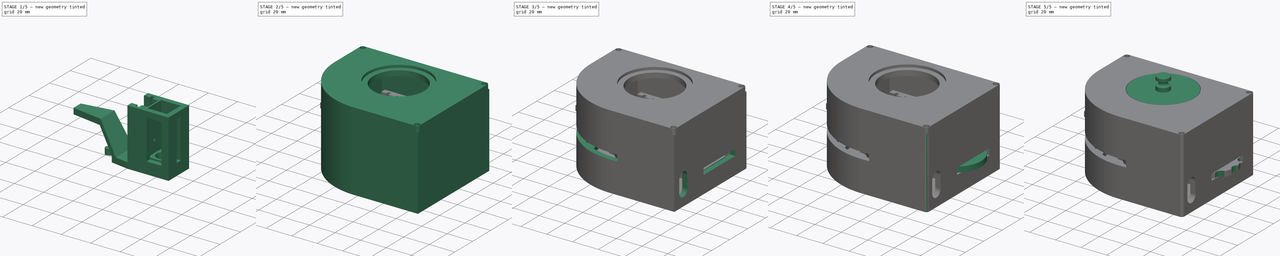
[diagram: build sequence overview — one tinted view per stage of 5, left to right]
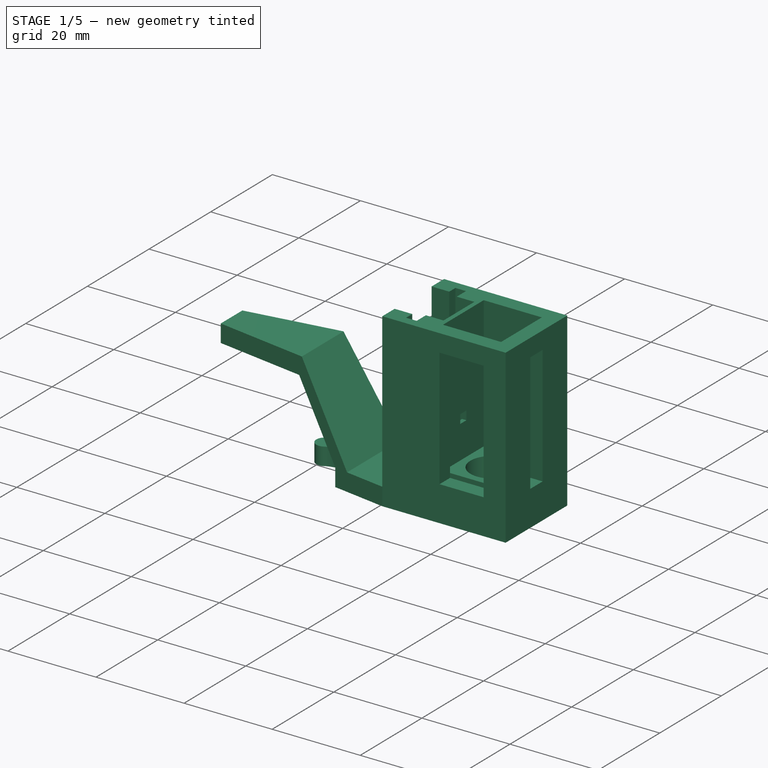
[diagram: stage 1 of 5 — iso view after this stage's code; geometry added in this stage tinted green]
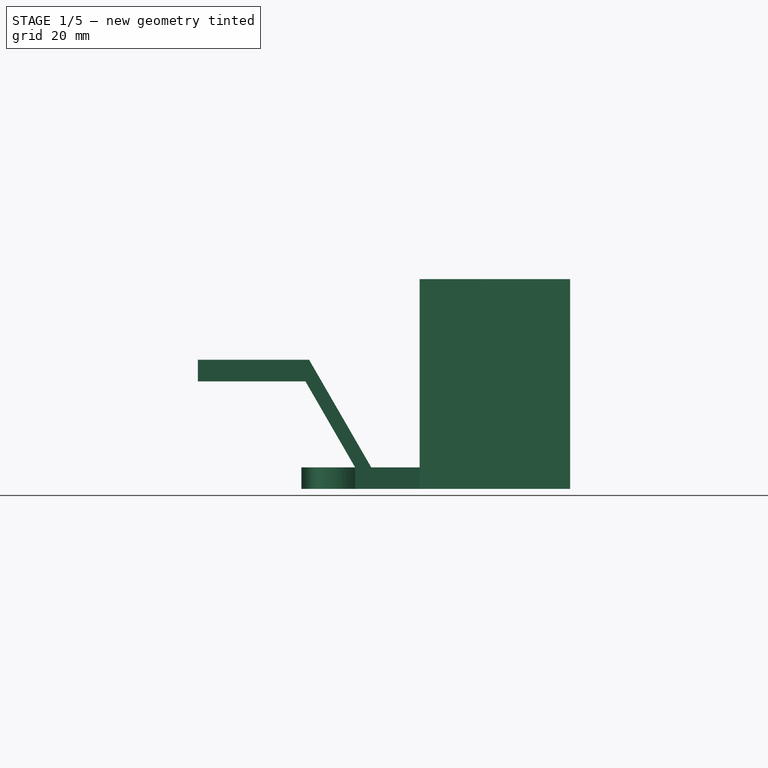
[diagram: stage 1 of 5 — front view after this stage's code; geometry added in this stage tinted green]
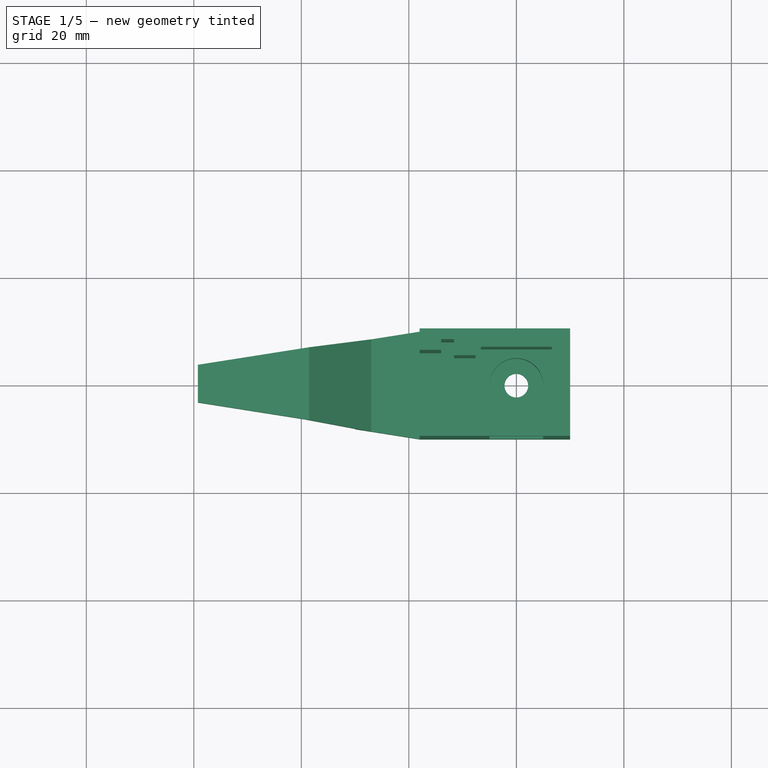
[diagram: stage 1 of 5 — top view after this stage's code; geometry added in this stage tinted green]
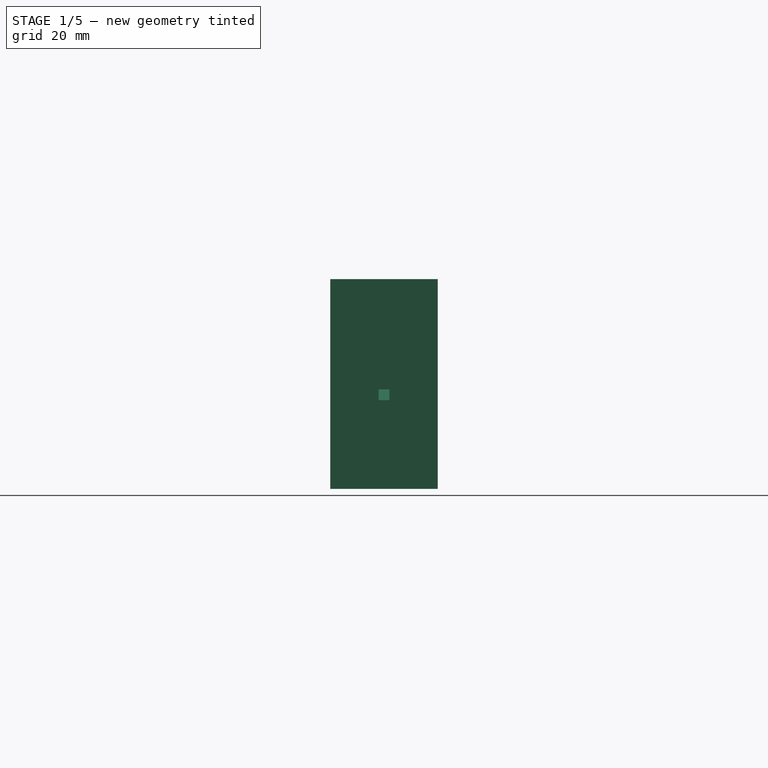
[diagram: stage 1 of 5 — right view after this stage's code; geometry added in this stage tinted green]
FCSTD DOCUMENT  (FreeCAD 0.18.3R)
Label: Скетч_0.8.6_земля
License: All rights reserved
LicenseURL: http://en.wikipedia.org/wiki/All_rights_reserved
objects: Sketcher::SketchObject×48, PartDesign::Pocket×28, PartDesign::Pad×20, App::DocumentObjectGroupPython×13, PartDesign::Fillet×6, PartDesign::ShapeBinder×5, PartDesign::Body×5, Part::Feature×5, Part::Cylinder×3, Spreadsheet::Sheet×1, Part::MultiFuse×1, Part::Cut×1
note: 170 computed .brp shape members not serialized (recipe doc carries the construction recipe); baked Part::Feature solids carry a one-line shape summary decoded from their .brp

FEATURE [PartDesign::ShapeBinder] CopyPocket
  TraceSupport = false
FEATURE [Sketcher::SketchObject] Sketch002
  MapMode = 5
  Placement = pos=(0,0,8) rot=(0,0,1;0rad)
  Support = -> [CopyPocket]
  expr: Constraints[1] = dip.ctenka * 2 + dip.kuv + dip.zazbol * 2
  expr: Constraints[8] = dip.dlinkuvd
  sketch-geometry (5):
    g0: LineSegment StartX=10 StartY=-10 StartZ=0 EndX=10 EndY=10 EndZ=0
    g1: LineSegment StartX=10 StartY=10 StartZ=0 EndX=-40 EndY=10 EndZ=0
    g2: LineSegment StartX=-40 StartY=10 StartZ=0 EndX=-40 EndY=-10 EndZ=0
    g3: LineSegment StartX=-40 StartY=-10 StartZ=0 EndX=10 EndY=-10 EndZ=0
    g4: LineSegment [constr] StartX=-10 StartY=-10 StartZ=0 EndX=10 EndY=-10 EndZ=0
  constraints (15):
    c: Vertical(g0)
    c: DistanceY(g0,g0) = 20
    c: Symmetric(g0,g0,g-1)
    c: Horizontal(g1)
    c: Coincident(g1,g2)
    c: Vertical(g2)
    c: Coincident(g2,g3)
    c: Horizontal(g3)
    c: DistanceX(g2,g0) = 50
    c: Coincident(g1,g0)
    c: Coincident(g3,g0)
    c: PointOnObject(g4,g3)
    c: Coincident(g4,g0)
    c: Symmetric(g4,g0,g-2)
    c: Equal(g4,g0)
FEATURE [PartDesign::Pad] Pad001
  Length = 4
  Length2 = 100
  Profile = -> Sketch002
  Type = 0
  expr: Length = dip.ctenka
FEATURE [Sketcher::SketchObject] Sketch003
  MapMode = 5
  Placement = pos=(0,0,12) rot=(0,0,1;0rad)
  Support = -> [Pad001]
  expr: Constraints[1] = dip.r1
  sketch-geometry (1):
    g0: Circle CenterX=0 CenterY=0 CenterZ=0 NormalX=0 NormalY=0 NormalZ=1 AngleXU=0 Radius=5
  constraints (2):
    c: Coincident(g0,g-1)
    c: Radius(g0) = 5
FEATURE [PartDesign::Pocket] Pocket001
  BaseFeature = -> Pad001
  Length = 2
  Length2 = 100
  Profile = -> Sketch003
  Type = 0
  expr: Length = dip.ctenka / 2
FEATURE [Sketcher::SketchObject] Sketch004
  MapMode = 5
  Placement = pos=(0,0,10) rot=(0,0,1;0rad)
  Support = -> [Pocket001]
  expr: Constraints[1] = dip.r2 + dip.zazsv
  sketch-geometry (1):
    g0: Circle CenterX=0 CenterY=0 CenterZ=0 NormalX=0 NormalY=0 NormalZ=1 AngleXU=0 Radius=2.2
  constraints (2):
    c: Coincident(g0,g-1)
    c: Radius(g0) = 2.2
FEATURE [PartDesign::Pocket] Pocket002
  BaseFeature = -> Pocket001
  Length = 2
  Length2 = 100
  Profile = -> Sketch004
  Type = 0
  expr: Length = dip.ctenka / 2
FEATURE [Sketcher::SketchObject] Sketch016
  ExternalGeometry = -> [Pocket002]
  MapMode = 5
  Placement = pos=(0,0,12) rot=(0,0,1;0rad)
  Support = -> [Pocket002]
  expr: Constraints[39] = dip.ctenka / 2
  expr: Constraints[38] = dip.ctenka
  expr: Constraints[7] = dip.kuv + dip.zazbol * 2 + 1.2
  expr: Constraints[37] = dip.dlinshel + 0.4
  sketch-geometry (20):
    g0: LineSegment StartX=-6.6 StartY=6.6 StartZ=0 EndX=6.6 EndY=6.6 EndZ=0
    g1: LineSegment StartX=6.6 StartY=6.6 StartZ=0 EndX=6.6 EndY=-6.6 EndZ=0
    g2: LineSegment StartX=6.6 StartY=-6.6 StartZ=0 EndX=-6.6 EndY=-6.6 EndZ=0
    g3: LineSegment StartX=-6.6 StartY=-6.6 StartZ=0 EndX=-6.6 EndY=6.6 EndZ=0
    g4: LineSegment StartX=10 StartY=-10 StartZ=0 EndX=10 EndY=10 EndZ=0
    g5: LineSegment StartX=10 StartY=10 StartZ=0 EndX=-18 EndY=10 EndZ=0
    g6: LineSegment StartX=-18 StartY=10 StartZ=0 EndX=-18 EndY=6 EndZ=0
    g7: LineSegment StartX=-18 StartY=6 StartZ=0 EndX=-14 EndY=6 EndZ=0
    g8: LineSegment StartX=-14 StartY=6 StartZ=0 EndX=-14 EndY=8 EndZ=0
    g9: LineSegment StartX=-14 StartY=8 StartZ=0 EndX=-11.6 EndY=8 EndZ=0
    g10: LineSegment StartX=-11.6 StartY=8 StartZ=0 EndX=-11.6 EndY=-8 EndZ=0
    g11: LineSegment StartX=-11.6 StartY=-8 StartZ=0 EndX=-14 EndY=-8 EndZ=0
    g12: LineSegment StartX=-14 StartY=-8 StartZ=0 EndX=-14 EndY=-6 EndZ=0
    g13: LineSegment StartX=-14 StartY=-6 StartZ=0 EndX=-18 EndY=-6 EndZ=0
    g14: LineSegment StartX=-18 StartY=-6 StartZ=0 EndX=-18 EndY=-10 EndZ=0
    g15: LineSegment StartX=-18 StartY=-10 StartZ=0 EndX=10 EndY=-10 EndZ=0
    g16: LineSegment StartX=-27 StartY=10 StartZ=0 EndX=-70 EndY=10 EndZ=0
    g17: LineSegment StartX=-70 StartY=10 StartZ=0 EndX=-70 EndY=-10 EndZ=0
    g18: LineSegment StartX=-70 StartY=-10 StartZ=0 EndX=-27 EndY=-10 EndZ=0
    g19: LineSegment StartX=-27 StartY=-10 StartZ=0 EndX=-27 EndY=10 EndZ=0
  constraints (53):
    c: Coincident(g0,g1)
    c: Coincident(g1,g2)
    c: Coincident(g2,g3)
    c: Coincident(g3,g0)
    c: Horizontal(g0)
    c: Vertical(g3)
    c: Equal(g0,g1)
    c: DistanceY(g1,g0) = 13.2
    c: Symmetric(g1,g0,g-1)
    c: Symmetric(g1,g2,g-2)
    c: Coincident(g-3,g4)
    c: Coincident(g4,g-4)
    c: Coincident(g4,g5)
    c: PointOnObject(g5,g-4)
    c: Coincident(g5,g6)
    c: Vertical(g6)
    c: Coincident(g6,g7)
    c: Horizontal(g7)
    c: Coincident(g7,g8)
    c: Vertical(g8)
    c: Coincident(g8,g9)
    c: Horizontal(g9)
    c: Coincident(g9,g10)
    c: Coincident(g10,g11)
    c: Horizontal(g11)
    c: Coincident(g11,g12)
    c: Vertical(g12)
    c: Coincident(g12,g13)
    c: Coincident(g13,g14)
    c: PointOnObject(g14,g-3)
    c: Vertical(g14)
    c: Coincident(g14,g15)
    c: Coincident(g15,g4)
    c: Symmetric(g10,g9,g-1)
    c: Symmetric(g13,g6,g-1)
    c: Symmetric(g12,g7,g-1)
    c: DistanceX(g10,g2) = 5
    c: DistanceX(g11,g10) = 2.4
    c: DistanceY(g14,g13) = 4
    c: DistanceY(g7,g8) = 2
    c: Coincident(g16,g17)
    c: Coincident(g17,g18)
    c: Coincident(g18,g19)
    c: Coincident(g19,g16)
    c: Horizontal(g16)
    c: Horizontal(g18)
    c: Vertical(g17)
    c: Vertical(g19)
    c: PointOnObject(g16,g-4)
    c: PointOnObject(g18,g-3)
    c: DistanceX(g-4,g16) = 13
    c: DistanceX(g16,g-4) = 30
    c: DistanceX(g16,g5) = 9
FEATURE [PartDesign::Pad] Pad007
  BaseFeature = -> Pocket002
  Length = 35
  Length2 = 100
  Profile = -> Sketch016
  Type = 0
FEATURE [Sketcher::SketchObject] Sketch017
  ExternalGeometry = -> [Pad007]
  MapMode = 5
  Placement = pos=(0,-10,0) rot=(1,0,0;1.5708rad)
  Support = -> [Pad007]
  expr: Constraints[8] = dip.kuv
  sketch-geometry (4):
    g0: LineSegment StartX=-5 StartY=16 StartZ=0 EndX=5 EndY=16 EndZ=0
    g1: LineSegment StartX=5 StartY=16 StartZ=0 EndX=5 EndY=43 EndZ=0
    g2: LineSegment StartX=5 StartY=43 StartZ=0 EndX=-5 EndY=43 EndZ=0
    g3: LineSegment StartX=-5 StartY=43 StartZ=0 EndX=-5 EndY=16 EndZ=0
  constraints (11):
    c: Coincident(g0,g1)
    c: Coincident(g1,g2)
    c: Coincident(g2,g3)
    c: Coincident(g3,g0)
    c: Horizontal(g0)
    c: Vertical(g1)
    c: Vertical(g3)
    c: Symmetric(g1,g2,g-2)
    c: DistanceX(g0,g0) = 10
    c: DistanceY(g1,g-4) = 4
    c: DistanceY(g-5,g0) = 4
FEATURE [PartDesign::Pocket] Pocket009
  BaseFeature = -> Pad007
  Length = 5
  Length2 = 100
  Profile = -> Sketch017
  Type = 0
FEATURE [Sketcher::SketchObject] Sketch061
  ExternalGeometry = -> [Pocket009]
  MapMode = 5
  Placement = pos=(10,0,0) rot=(0.57735,0.57735,0.57735;2.0944rad)
  Support = -> [Pocket009]
  sketch-geometry (4):
    g0: LineSegment StartX=-2 StartY=43 StartZ=0 EndX=2 EndY=43 EndZ=0
    g1: LineSegment StartX=2 StartY=43 StartZ=0 EndX=2 EndY=16 EndZ=0
    g2: LineSegment StartX=2 StartY=16 StartZ=0 EndX=-2 EndY=16 EndZ=0
    g3: LineSegment StartX=-2 StartY=16 StartZ=0 EndX=-2 EndY=43 EndZ=0
  constraints (11):
    c: Coincident(g0,g1)
    c: Coincident(g1,g2)
    c: Coincident(g2,g3)
    c: Coincident(g3,g0)
    c: Horizontal(g2)
    c: Vertical(g1)
    c: Vertical(g3)
    c: Symmetric(g0,g0,g-2)
    c: DistanceX(g2,g1) = 4
    c: DistanceY(g0,g-3) = 4
    c: DistanceY(g-4,g1) = 4
FEATURE [PartDesign::Pocket] Pocket032
  BaseFeature = -> Pocket009
  Length = 6
  Length2 = 100
  Profile = -> Sketch061
  Type = 0
FEATURE [Sketcher::SketchObject] Sketch062
  ExternalGeometry = -> [Pocket032]
  MapMode = 5
  Placement = pos=(0,0,47) rot=(0,0,1;0rad)
  Support = -> [Pocket032]
  sketch-geometry (4):
    g0: LineSegment StartX=-11.6 StartY=-5 StartZ=0 EndX=-7.6 EndY=-5 EndZ=0
    g1: LineSegment StartX=-7.6 StartY=-5 StartZ=0 EndX=-7.6 EndY=5 EndZ=0
    g2: LineSegment StartX=-7.6 StartY=5 StartZ=0 EndX=-11.6 EndY=5 EndZ=0
    g3: LineSegment StartX=-11.6 StartY=5 StartZ=0 EndX=-11.6 EndY=-5 EndZ=0
  constraints (11):
    c: Coincident(g0,g1)
    c: Coincident(g1,g2)
    c: Coincident(g2,g3)
    c: Coincident(g3,g0)
    c: Horizontal(g0)
    c: Horizontal(g2)
    c: Vertical(g3)
    c: DistanceY(g0,g1) = 10
    c: Symmetric(g0,g1,g-1)
    c: DistanceX(g0,g0) = 4
    c: DistanceX(g1,g-1) = 7.6
FEATURE [PartDesign::Pocket] Pocket033
  BaseFeature = -> Pocket032
  Length = 31
  Length2 = 100
  Profile = -> Sketch062
  Type = 0
FEATURE [Sketcher::SketchObject] Sketch063
  ExternalGeometry = -> [Pocket033]
  MapMode = 5
  Placement = pos=(0,10,0) rot=(0,0.707107,0.707107;3.14159rad)
  Support = -> [Pocket033]
  sketch-geometry (9):
    g0: LineSegment StartX=30 StartY=12 StartZ=0 EndX=39.2376 EndY=28 EndZ=0
    g1: LineSegment StartX=39.2376 StartY=28 StartZ=0 EndX=59.2376 EndY=28 EndZ=0
    g2: LineSegment StartX=59.2376 StartY=28 StartZ=0 EndX=59.2376 EndY=32 EndZ=0
    g3: LineSegment StartX=59.2376 StartY=32 StartZ=0 EndX=38.547 EndY=32 EndZ=0
    g4: LineSegment StartX=38.547 StartY=32 StartZ=0 EndX=27 EndY=12 EndZ=0
    g5: LineSegment StartX=30 StartY=12 StartZ=0 EndX=70 EndY=12 EndZ=0
    g6: LineSegment StartX=70 StartY=12 StartZ=0 EndX=70 EndY=47 EndZ=0
    g7: LineSegment StartX=70 StartY=47 StartZ=0 EndX=27 EndY=47 EndZ=0
    g8: LineSegment StartX=27 StartY=47 StartZ=0 EndX=27 EndY=12 EndZ=0
  constraints (16):
    c: Coincident(g0,g1)
    c: Coincident(g1,g2)
    c: Coincident(g2,g3)
    c: Coincident(g3,g4)
    c: Horizontal(g3)
    c: Horizontal(g1)
    c: Vertical(g2)
    c: Parallel(g4,g0)
    c: DistanceY(g1,g2) = 4
    c: DistanceX(g4,g0) = 3
    c: DistanceX(g0,g1) = 20
    c: Coincident(g5,g6)
    c: Coincident(g6,g7)
    c: Coincident(g7,g8)
    c: Coincident(g5,g0)
    c: Coincident(g8,g4)
FEATURE [PartDesign::Pocket] Pocket034
  BaseFeature = -> Pocket033
  Length = 22
  Length2 = 100
  Profile = -> Sketch063
  Type = 0
FEATURE [Sketcher::SketchObject] Sketch064
  ExternalGeometry = -> [Pocket034]
  MapMode = 5
  Placement = pos=(0,7e-15,32) rot=(0,0,1;0rad)
  Support = -> [Pocket034]
  sketch-geometry (6):
    g0: LineSegment StartX=-18 StartY=10 StartZ=0 EndX=-59.2376 EndY=3.5 EndZ=0
    g1: LineSegment StartX=-59.2376 StartY=3.5 StartZ=0 EndX=-59.2376 EndY=10 EndZ=0
    g2: LineSegment StartX=-59.2376 StartY=10 StartZ=0 EndX=-18 EndY=10 EndZ=0
    g3: LineSegment StartX=-59.2376 StartY=-3.5 StartZ=0 EndX=-18 EndY=-10 EndZ=0
    g4: LineSegment StartX=-18 StartY=-10 StartZ=0 EndX=-59.2376 EndY=-10 EndZ=0
    g5: LineSegment StartX=-59.2376 StartY=-10 StartZ=0 EndX=-59.2376 EndY=-3.5 EndZ=0
  constraints (13):
    c: Coincident(g0,g1)
    c: Coincident(g1,g2)
    c: Coincident(g4,g5)
    c: Coincident(g5,g3)
    c: Symmetric(g0,g3,g-1)
    c: DistanceY(g3,g0) = 7
    c: Coincident(g4,g3)
    c: Coincident(g0,g2)
    c: Coincident(g4,g-5)
    c: Coincident(g1,g-5)
    c: PointOnObject(g0,g-5)
    c: Coincident(g3,g-3)
    c: Coincident(g0,g-4)
FEATURE [PartDesign::Pocket] Pocket035
  BaseFeature = -> Pocket034
  Length = 30
  Length2 = 100
  Profile = -> Sketch064
  Type = 0
FEATURE [Sketcher::SketchObject] Sketch065
  ExternalGeometry = -> [Pocket035]
  MapMode = 5
  Placement = pos=(0,0,8) rot=(1,0,0;3.14159rad)
  Support = -> [Pocket035]
  sketch-geometry (8):
    g0: ArcOfCircle CenterX=-38 CenterY=0 CenterZ=0 NormalX=0 NormalY=0 NormalZ=1 AngleXU=0 Radius=2 StartAngle=1.06842 EndAngle=5.21476
    g1: ArcOfCircle CenterX=-34.21 CenterY=-6.89852 CenterZ=0 NormalX=0 NormalY=0 NormalZ=1 AngleXU=0 Radius=5.87106 StartAngle=0.771198 EndAngle=2.07317
    g2: ArcOfCircle CenterX=-34.21 CenterY=6.89852 CenterZ=0 NormalX=0 NormalY=0 NormalZ=1 AngleXU=0 Radius=5.87106 StartAngle=4.21001 EndAngle=5.51199
    g3: LineSegment StartX=-30 StartY=2.80642 StartZ=0 EndX=-30 EndY=8.10852 EndZ=0
    g4: LineSegment StartX=-30 StartY=8.10852 StartZ=0 EndX=-40 EndY=6.53229 EndZ=0
    g5: LineSegment StartX=-40 StartY=6.53229 StartZ=0 EndX=-40 EndY=-6.53229 EndZ=0
    g6: LineSegment StartX=-40 StartY=-6.53229 StartZ=0 EndX=-30 EndY=-8.10852 EndZ=0
    g7: LineSegment StartX=-30 StartY=-8.10852 StartZ=0 EndX=-30 EndY=-2.80642 EndZ=0
  constraints (22):
    c: Coincident(g3,g4)
    c: Coincident(g4,g5)
    c: Coincident(g5,g6)
    c: Coincident(g6,g7)
    c: Vertical(g7)
    c: Vertical(g3)
    c: PointOnObject(g6,g-4)
    c: PointOnObject(g3,g-3)
    c: Coincident(g4,g-3)
    c: Coincident(g5,g-4)
    c: Coincident(g1,g7)
    c: Coincident(g2,g3)
    c: Radius(g0) = 2
    c: PointOnObject(g0,g-1)
    c: Symmetric(g1,g2,g-1)
    c: Vertical(g1,g2)
    c: DistanceX(g5,g6) = 10
    c: DistanceX(g4,g0) = 2.00001
    c: Tangent(g1,g0) = 1.5708
    c: Tangent(g2,g0) = 1.5708
    c: DistanceX(g1,g6) = 4.21
    c: DistanceY(g6,g1) = 1.21
FEATURE [PartDesign::Pocket] Pocket036
  BaseFeature = -> Pocket035
  Length = 4
  Length2 = 100
  Profile = -> Sketch065
  Type = 0
FEATURE [PartDesign::Body] Body004  label="Крышка"
  Group = -> [CopyPad006,Sketch036,Pad012,Sketch037,Pad013,Sketch038,Pad014,Sketch043,Pocket021,Sketch044,Pocket022,Sketch052,Pocket025,Sketch053,Pocket026,Fillet006]
  Origin = -> Origin004
  Tip = -> Fillet006
FEATURE [Sketcher::SketchObject] Sketch075
  ExternalGeometry = -> [Pocket032]
  MapMode = 5
  Placement = pos=(-6.6,0,0) rot=(0.57735,0.57735,0.57735;2.0944rad)
  Support = -> [Pocket032]
  sketch-geometry (4):
    g0: LineSegment StartX=-1 StartY=26.5 StartZ=0 EndX=1 EndY=26.5 EndZ=0
    g1: LineSegment StartX=1 StartY=26.5 StartZ=0 EndX=1 EndY=24.5 EndZ=0
    g2: LineSegment StartX=1 StartY=24.5 StartZ=0 EndX=-1 EndY=24.5 EndZ=0
    g3: LineSegment StartX=-1 StartY=24.5 StartZ=0 EndX=-1 EndY=26.5 EndZ=0
  constraints (11):
    c: Coincident(g0,g1)
    c: Coincident(g1,g2)
    c: Coincident(g2,g3)
    c: Coincident(g3,g0)
    c: Horizontal(g0)
    c: Vertical(g1)
    c: Vertical(g3)
    c: Symmetric(g1,g2,g-2)
    c: DistanceY(g-3,g1) = 12.5
    c: DistanceY(g1,g0) = 2
    c: Equal(g1,g0)
FEATURE [PartDesign::Pocket] Pocket045
  BaseFeature = -> Pocket036
  Length = 5
  Length2 = 100
  Profile = -> Sketch075
  Type = 0
FEATURE [Sketcher::SketchObject] Sketch076
  ExternalGeometry = -> [Pocket045]
  MapMode = 5
  Placement = pos=(0,0,12) rot=(0,0,1;0rad)
  Support = -> [Pocket045]
  sketch-geometry (5):
    g0: LineSegment StartX=-6.6 StartY=6.6 StartZ=0 EndX=6.6 EndY=6.6 EndZ=0
    g1: LineSegment StartX=6.6 StartY=6.6 StartZ=0 EndX=6.6 EndY=-6.6 EndZ=0
    g2: LineSegment StartX=6.6 StartY=-6.6 StartZ=0 EndX=-6.6 EndY=-6.6 EndZ=0
    g3: LineSegment StartX=-6.6 StartY=-6.6 StartZ=0 EndX=-6.6 EndY=6.6 EndZ=0
    g4: Circle CenterX=0 CenterY=0 CenterZ=0 NormalX=0 NormalY=0 NormalZ=1 AngleXU=0 Radius=5
  constraints (12):
    c: Coincident(g0,g1)
    c: Coincident(g1,g2)
    c: Coincident(g2,g3)
    c: Coincident(g3,g0)
    c: Horizontal(g0)
    c: Horizontal(g2)
    c: Vertical(g1)
    c: Vertical(g3)
    c: Coincident(g1,g-4)
    c: Coincident(g0,g-3)
    c: Coincident(g4,g-1)
    c: Radius(g4) = 5
FEATURE [PartDesign::Pad] Pad027
  BaseFeature = -> Pocket045
  Length = 5
  Length2 = 100
  Profile = -> Sketch076
  Type = 0
FEATURE [PartDesign::Body] Body002  label="Кюветодержатель"
  Group = -> [CopyPocket,Sketch002,Pad001,Sketch003,Pocket001,Sketch004,Pocket002,Sketch016,Pad007,Sketch017,Pocket009,Sketch061,Pocket032,Sketch062,Pocket033,Sketch063,Pocket034,Sketch064,Pocket035,Sketch065,Pocket036,Sketch075,Pocket045,Sketch076,Pad027]
  Origin = -> Origin002
  Tip = -> Pad027
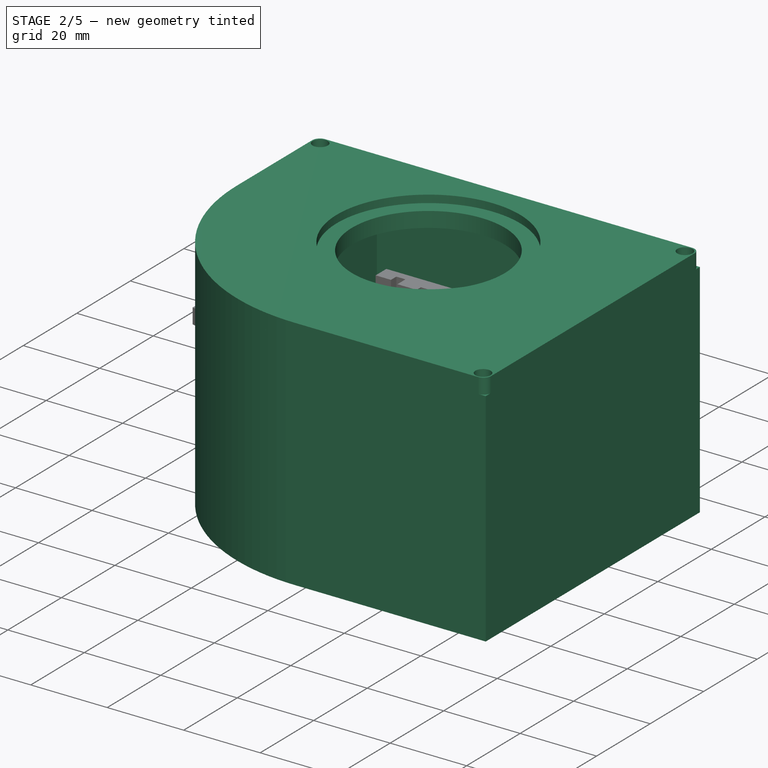
[diagram: stage 2 of 5 — iso view after this stage's code; geometry added in this stage tinted green]
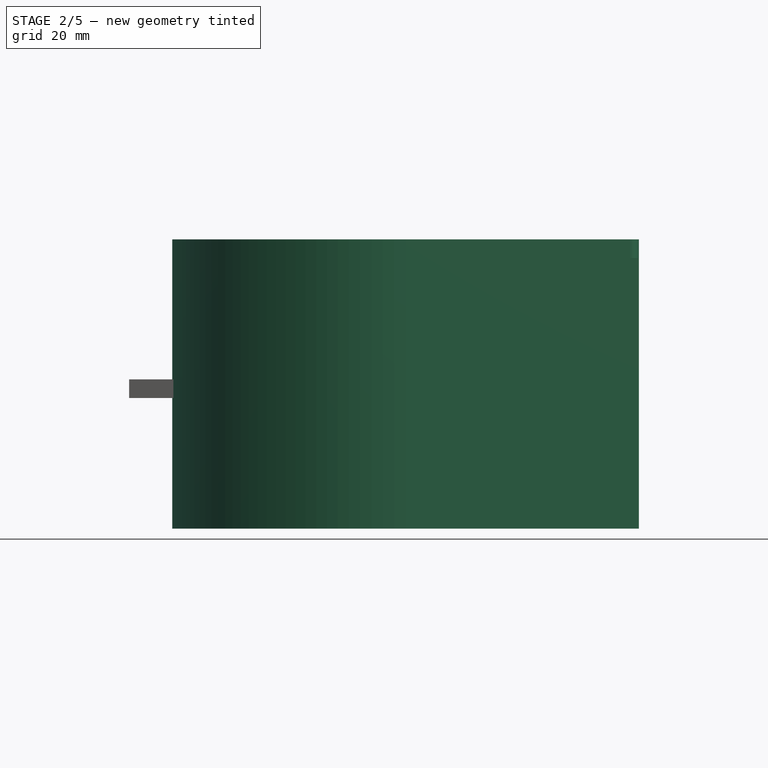
[diagram: stage 2 of 5 — front view after this stage's code; geometry added in this stage tinted green]
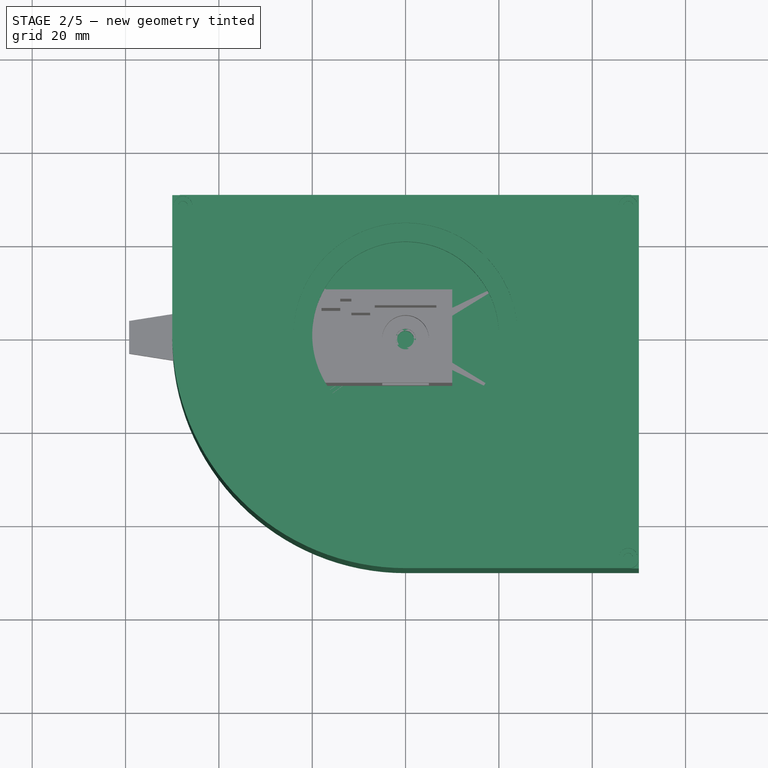
[diagram: stage 2 of 5 — top view after this stage's code; geometry added in this stage tinted green]
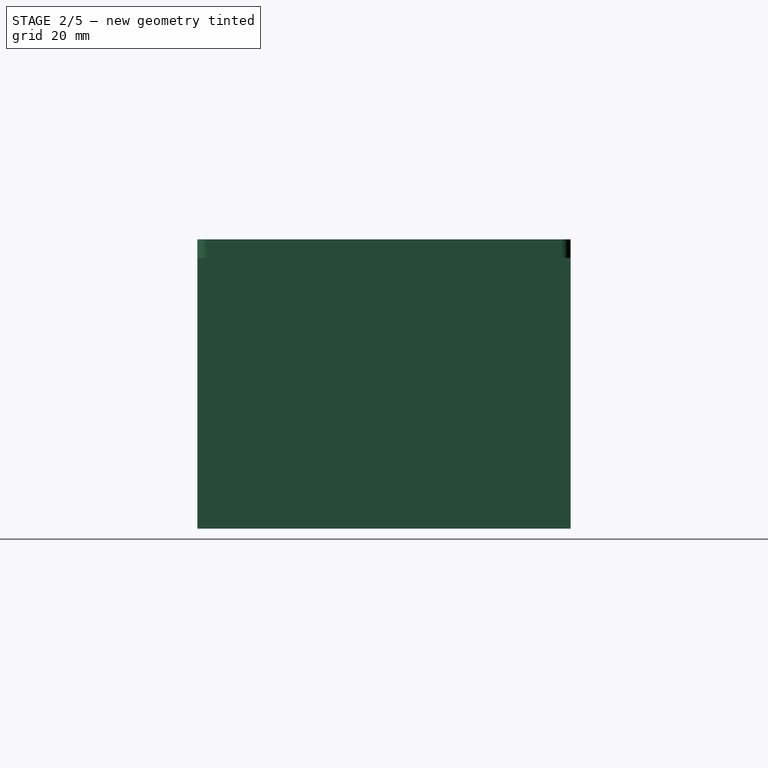
[diagram: stage 2 of 5 — right view after this stage's code; geometry added in this stage tinted green]
FEATURE [Sketcher::SketchObject] Sketch
  MapMode = 5
  Support = -> [XY_Plane]
  expr: Constraints[117] = dip.ctenka
  expr: Constraints[68] = dip.ctenka
  expr: Constraints[67] = dip.ctenka
  sketch-geometry (39):
    g0: LineSegment StartX=50 StartY=-50 StartZ=0 EndX=50 EndY=30 EndZ=0
    g1: LineSegment StartX=50 StartY=30 StartZ=0 EndX=-50 EndY=30 EndZ=0
    g2: ArcOfCircle CenterX=0 CenterY=0 CenterZ=0 NormalX=0 NormalY=0 NormalZ=1 AngleXU=0 Radius=50 StartAngle=3.14159 EndAngle=4.71239
    g3: LineSegment StartX=1.5e-11 StartY=-50 StartZ=0 EndX=50 EndY=-50 EndZ=0
    g4: LineSegment [constr] StartX=10 StartY=10 StartZ=0 EndX=-30 EndY=10 EndZ=0
    g5: LineSegment [constr] StartX=-30 StartY=10 StartZ=0 EndX=-30 EndY=-10 EndZ=0
    g6: LineSegment [constr] StartX=-30 StartY=-10 StartZ=0 EndX=10 EndY=-10 EndZ=0
    g7: LineSegment [constr] StartX=10 StartY=-10 StartZ=0 EndX=10 EndY=10 EndZ=0
    g8: LineSegment [constr] StartX=-10 StartY=-10 StartZ=0 EndX=-10 EndY=10 EndZ=0
    g9: Circle [constr] CenterX=36 CenterY=0 CenterZ=0 NormalX=0 NormalY=0 NormalZ=1 AngleXU=0 Radius=20
    g10: ArcOfCircle [constr] CenterX=0 CenterY=0 CenterZ=0 NormalX=0 NormalY=0 NormalZ=1 AngleXU=0 Radius=20 StartAngle=3.14159 EndAngle=4.71239
    g11: ArcOfCircle [constr] CenterX=0 CenterY=0 CenterZ=0 NormalX=0 NormalY=0 NormalZ=1 AngleXU=0 Radius=24 StartAngle=3.14159 EndAngle=4.71239
    g12: ArcOfCircle [constr] CenterX=-22 CenterY=0 CenterZ=0 NormalX=0 NormalY=0 NormalZ=1 AngleXU=0 Radius=2 StartAngle=0 EndAngle=3.14159
    g13: ArcOfCircle [constr] CenterX=0 CenterY=-22 CenterZ=0 NormalX=0 NormalY=0 NormalZ=1 AngleXU=0 Radius=2 StartAngle=4.71239 EndAngle=7.85398
    g14: ArcOfCircle [constr] CenterX=36 CenterY=0 CenterZ=0 NormalX=0 NormalY=0 NormalZ=1 AngleXU=0 Radius=16 StartAngle=2.0944 EndAngle=4.18879
    g15: Circle [constr] CenterX=36 CenterY=0 CenterZ=0 NormalX=0 NormalY=0 NormalZ=1 AngleXU=0 Radius=2.5
    g16: LineSegment [constr] StartX=28 StartY=13.8564 StartZ=0 EndX=36 EndY=0 EndZ=0
    g17: LineSegment [constr] StartX=36 StartY=0 StartZ=0 EndX=28 EndY=-13.8564 EndZ=0
    g18: LineSegment [constr] StartX=36 StartY=0 StartZ=0 EndX=23.1442 EndY=15.3209 EndZ=0
    g19: LineSegment [constr] StartX=36 StartY=0 StartZ=0 EndX=23.1442 EndY=-15.3209 EndZ=0
    g20: LineSegment [constr] StartX=36 StartY=0 StartZ=0 EndX=17.8738 EndY=-8.45237 EndZ=0
    g21: LineSegment [constr] StartX=36 StartY=0 StartZ=0 EndX=17.8738 EndY=8.45237 EndZ=0
    g22: LineSegment [constr] StartX=36 StartY=0 StartZ=0 EndX=16 EndY=0 EndZ=0
    g23: LineSegment [constr] StartX=50 StartY=-14.2829 StartZ=0 EndX=50 EndY=14.2829 EndZ=0
    g24: LineSegment [constr] StartX=-46 StartY=26 StartZ=0 EndX=46 EndY=26 EndZ=0
    g25: LineSegment [constr] StartX=46 StartY=26 StartZ=0 EndX=46 EndY=-46 EndZ=0
    g26: LineSegment [constr] StartX=46 StartY=-46 StartZ=0 EndX=1.39977e-11 EndY=-46 EndZ=0
    g27: ArcOfCircle [constr] CenterX=0 CenterY=0 CenterZ=0 NormalX=0 NormalY=0 NormalZ=1 AngleXU=0 Radius=46 StartAngle=3.14159 EndAngle=4.71239
    g28: Circle [constr] CenterX=0 CenterY=0 CenterZ=0 NormalX=0 NormalY=0 NormalZ=1 AngleXU=0 Radius=5
    g29: LineSegment [constr] StartX=-20 StartY=10 StartZ=0 EndX=-20 EndY=6 EndZ=0
    g30: LineSegment [constr] StartX=-20 StartY=6 StartZ=0 EndX=-10 EndY=6 EndZ=0
    g31: LineSegment [constr] StartX=-10 StartY=6 StartZ=0 EndX=-10 EndY=-6 EndZ=0
    g32: LineSegment [constr] StartX=-10 StartY=-6 StartZ=0 EndX=-20 EndY=-6 EndZ=0
    g33: LineSegment [constr] StartX=-20 StartY=-6 StartZ=0 EndX=-20 EndY=-10 EndZ=0
    g34: LineSegment [constr] StartX=-20 StartY=10 StartZ=0 EndX=-30 EndY=3 EndZ=0
    g35: LineSegment [constr] StartX=-20 StartY=-10 StartZ=0 EndX=-30 EndY=-3 EndZ=0
    g36: Circle [constr] CenterX=36 CenterY=0 CenterZ=0 NormalX=0 NormalY=0 NormalZ=1 AngleXU=0 Radius=15
    g37: LineSegment [constr] StartX=-46 StartY=26 StartZ=0 EndX=-46 EndY=-1.00009e-11 EndZ=0
    g38: LineSegment StartX=-50 StartY=30 StartZ=0 EndX=-50 EndY=-3.8326e-07 EndZ=0
  constraints (118):
    c: Coincident(g0,g1)
    c: Horizontal(g1)
    c: Coincident(g3,g0)
    c: Horizontal(g3)
    c: Vertical(g0)
    c: DistanceX(g1,g0) = 100
    c: DistanceY(g0,g0) = 80
    c: Coincident(g4,g5)
    c: Coincident(g5,g6)
    c: Coincident(g6,g7)
    c: Coincident(g7,g4)
    c: Horizontal(g4)
    c: Horizontal(g6)
    c: Vertical(g5)
    c: Vertical(g7)
    c: DistanceY(g6,g4) = 20
    c: DistanceX(g5,g6) = 40
    c: Vertical(g8)
    c: Symmetric(g6,g4,g-1)
    c: PointOnObject(g9,g-1)
    c: Radius(g9) = 20
    c: Coincident(g10,g-1)
    c: PointOnObject(g10,g-1)
    c: PointOnObject(g10,g-2)
    c: Coincident(g11,g-1)
    c: PointOnObject(g11,g-1)
    c: PointOnObject(g11,g-2)
    c: PointOnObject(g12,g-1)
    c: Coincident(g12,g11)
    c: Coincident(g12,g10)
    c: Coincident(g13,g10)
    c: Coincident(g13,g11)
    c: PointOnObject(g13,g-2)
    c: Coincident(g14,g9)
    c: Coincident(g15,g9)
    c: Coincident(g16,g9)
    c: Coincident(g16,g17)
    c: Coincident(g17,g14)
    c: Coincident(g14,g16)
    c: Radius(g14) = 16
    c: Coincident(g18,g9)
    c: PointOnObject(g18,g9)
    c: Coincident(g19,g9)
    c: PointOnObject(g19,g9)
    c: Coincident(g20,g9)
    c: PointOnObject(g20,g9)
    c: Coincident(g21,g9)
    c: PointOnObject(g21,g9)
    c: Coincident(g22,g9)
    c: PointOnObject(g22,g9)
    c: Angle(g22,g20) = 0.436332
    c: Angle(g20,g19) = 0.436332
    c: Angle(g21,g22) = 0.436332
    c: Angle(g18,g21) = 0.436332
    c: Angle(g16,g17) = 2.0944
    c: Vertical(g14,g14)
    c: PointOnObject(g22,g-1)
    c: PointOnObject(g23,g9)
    c: PointOnObject(g23,g9)
    c: PointOnObject(g23,g0)
    c: PointOnObject(g23,g0)
    c: Radius(g13) = 2
    c: Horizontal(g24)
    c: Coincident(g24,g25)
    c: Vertical(g25)
    c: Coincident(g25,g26)
    c: Horizontal(g26)
    c: DistanceX(g24,g0) = 4
    c: DistanceY(g24,g0) = 4
    c: Radius(g15) = 2.5
    c: Coincident(g28,g-1)
    c: Radius(g28) = 5
    c: PointOnObject(g29,g4)
    c: Vertical(g29)
    c: Coincident(g29,g30)
    c: Horizontal(g30)
    c: Coincident(g30,g31)
    c: Vertical(g31)
    c: Coincident(g31,g32)
    c: Horizontal(g32)
    c: Coincident(g32,g33)
    c: PointOnObject(g33,g6)
    c: Vertical(g33)
    c: Symmetric(g31,g30,g-1)
    c: Vertical(g32,g29)
    c: DistanceX(g31,g6) = 20
    c: DistanceY(g33,g32) = 4
    c: DistanceX(g32,g31) = 10
    c: PointOnObject(g8,g6)
    c: Vertical(g8,g31)
    c: Symmetric(g8,g6,g-2)
    c: Coincident(g29,g34)
    c: PointOnObject(g34,g5)
    c: Coincident(g33,g35)
    c: PointOnObject(g35,g5)
    c: Symmetric(g35,g34,g-1)
    c: DistanceY(g35,g34) = 6
    c: DistanceY(g-1,g0) = 30
    c: Symmetric(g0,g1,g-2)
    c: DistanceX(g-1,g9) = 36
    c: Radius(g10) = 20
    c: PointOnObject(g8,g4)
    c: Coincident(g36,g9)
    c: Radius(g36) = 15
    c: Coincident(g27,g-1)
    c: Coincident(g37,g24)
    c: Coincident(g37,g27)
    c: Vertical(g37)
    c: Angle(g27) = 1.5708
    c: Horizontal(g-1,g27)
    c: Coincident(g26,g27)
    c: Coincident(g2,g-1)
    c: Coincident(g3,g2)
    c: Coincident(g38,g2)
    c: Vertical(g38)
    c: Coincident(g38,g1)
    c: PointOnObject(g2,g-2)
    c: DistanceY(g0,g25) = 4
FEATURE [Spreadsheet::Sheet] Spreadsheet  label="dip"
  cells = A1=ctenka; B1(ctenka)=4; A2=dno; B2(dno)=8; A3=kuv; B3(kuv)=10; A4=zazuz; B4(zazuz)=0.3; A5=zazsv; B5(zazsv)=0.4; A6=zazbol; B6(zazbol)=1; A7=ugol; B7(ugol)=25; A8=r1; B8(r1)=5; A9=r2; B9(r2)=1.8; A10=dlinkuvd; B10(dlinkuvd)=50; A11=dlinshel; B11(dlinshel)=2; C11=дополнительная вставка для маленьких кювет; A12=rbarab; B12(rbarab)=20; A13=ugdiod; B13(ugdiod)=25; A14=ugctbar; B14(ugctbar)=140; A15=rastkrug; B15(rastkrug)=36; A16=dlindiod; B16(dlindiod)=6; A17=raddiod; B17(raddiod)=2.5; A18=radzash; B18(radzash)=4; A19=r3; B19(r3)=1; A20=raddkuv; B20(raddkuv)=20; A21=r4; B21(r4)=3
FEATURE [PartDesign::Pad] Pad
  Length = 8
  Length2 = 100
  Profile = -> Sketch
  Type = 0
  expr: Length = dip.dno
FEATURE [Sketcher::SketchObject] Sketch008
  MapMode = 5
  Placement = pos=(0,0,8) rot=(0,0,1;0rad)
  expr: Constraints[1] = dip.rastkrug
  sketch-geometry (5):
    g0: Circle [constr] CenterX=36 CenterY=0 CenterZ=0 NormalX=0 NormalY=0 NormalZ=1 AngleXU=0 Radius=13
    g1: LineSegment StartX=23 StartY=13 StartZ=0 EndX=49 EndY=13 EndZ=0
    g2: LineSegment StartX=49 StartY=13 StartZ=0 EndX=49 EndY=-13 EndZ=0
    g3: LineSegment StartX=49 StartY=-13 StartZ=0 EndX=23 EndY=-13 EndZ=0
    g4: LineSegment StartX=23 StartY=-13 StartZ=0 EndX=23 EndY=13 EndZ=0
  constraints (15):
    c: PointOnObject(g0,g-1)
    c: DistanceX(g-1,g0) = 36
    c: Radius(g0) = 13
    c: Coincident(g1,g2)
    c: Coincident(g2,g3)
    c: Coincident(g3,g4)
    c: Coincident(g4,g1)
    c: Horizontal(g1)
    c: Horizontal(g3)
    c: Vertical(g2)
    c: Vertical(g4)
    c: Symmetric(g3,g1,g-1)
    c: Equal(g4,g3)
    c: DistanceX(g3,g3) = 26
    c: DistanceX(g-1,g1) = 23
FEATURE [PartDesign::Pad] Pad003
  BaseFeature = -> Pad
  Length = 10
  Length2 = 100
  Profile = -> Sketch008
  Type = 0
FEATURE [Sketcher::SketchObject] Sketch014
  MapMode = 5
  Placement = pos=(0,0,8) rot=(0,0,1;0rad)
  expr: Constraints[18] = dip.ctenka
  expr: Constraints[19] = dip.ctenka
  expr: Constraints[20] = dip.ctenka
  sketch-geometry (10):
    g0: LineSegment StartX=-50 StartY=30 StartZ=0 EndX=50 EndY=30 EndZ=0
    g1: LineSegment StartX=50 StartY=30 StartZ=0 EndX=50 EndY=-50 EndZ=0
    g2: LineSegment StartX=50 StartY=-50 StartZ=0 EndX=1.49996e-11 EndY=-50 EndZ=0
    g3: LineSegment StartX=1.4e-11 StartY=-46 StartZ=0 EndX=46 EndY=-46 EndZ=0
    g4: LineSegment StartX=46 StartY=-46 StartZ=0 EndX=46 EndY=26 EndZ=0
    g5: LineSegment StartX=46 StartY=26 StartZ=0 EndX=-46 EndY=26 EndZ=0
    g6: LineSegment StartX=-46 StartY=26 StartZ=0 EndX=-46 EndY=-1.00009e-11 EndZ=0
    g7: LineSegment StartX=-50 StartY=30 StartZ=0 EndX=-50 EndY=-3.8326e-07 EndZ=0
    g8: ArcOfCircle CenterX=0 CenterY=0 CenterZ=0 NormalX=0 NormalY=0 NormalZ=1 AngleXU=0 Radius=46 StartAngle=3.14159 EndAngle=4.71239
    g9: ArcOfCircle CenterX=0 CenterY=0 CenterZ=0 NormalX=0 NormalY=0 NormalZ=1 AngleXU=0 Radius=50 StartAngle=3.14159 EndAngle=4.71239
  constraints (21):
    c: Coincident(g0,g1)
    c: Coincident(g1,g2)
    c: PointOnObject(g3,g-2)
    c: Horizontal(g3)
    c: Coincident(g3,g4)
    c: Vertical(g4)
    c: Coincident(g4,g5)
    c: Horizontal(g5)
    c: Coincident(g5,g6)
    c: PointOnObject(g6,g-1)
    c: Vertical(g6)
    c: Vertical(g7)
    c: Coincident(g8,g-1)
    c: Coincident(g8,g6)
    c: Coincident(g8,g3)
    c: Coincident(g9,g-1)
    c: Coincident(g9,g7)
    c: Coincident(g9,g2)
    c: DistanceX(g4,g0) = 4
    c: DistanceY(g1,g3) = 4
    c: DistanceY(g5,g0) = 4
FEATURE [PartDesign::Pad] Pad006
  BaseFeature = -> Pad003
  Length = 50
  Length2 = 100
  Profile = -> Sketch014
  Type = 0
FEATURE [Sketcher::SketchObject] Sketch021
  MapMode = 5
  Placement = pos=(0,0,8) rot=(0,0,1;0rad)
  Support = -> [Pad006]
  expr: Constraints[1] = dip.r2
  sketch-geometry (1):
    g0: Circle CenterX=0 CenterY=0 CenterZ=0 NormalX=0 NormalY=0 NormalZ=1 AngleXU=0 Radius=1.8
  constraints (2):
    c: Coincident(g0,g-1)
    c: Radius(g0) = 1.8
FEATURE [PartDesign::Pocket] Pocket
  BaseFeature = -> Pad006
  Length = 4
  Length2 = 100
  Profile = -> Sketch021
  Type = 0
  expr: Length = dip.ctenka
FEATURE [PartDesign::ShapeBinder] CopyPad006
  Placement = pos=(0,0,50) rot=(0,0,1;0rad)
  TraceSupport = false
FEATURE [Sketcher::SketchObject] Sketch036
  ExternalGeometry = -> [CopyPad006]
  MapMode = 5
  Placement = pos=(0,0,58) rot=(0,0,1;0rad)
  Support = -> [CopyPad006]
  sketch-geometry (5):
    g0: LineSegment StartX=0 StartY=-50 StartZ=0 EndX=50 EndY=-50 EndZ=0
    g1: LineSegment StartX=50 StartY=-50 StartZ=0 EndX=50 EndY=30 EndZ=0
    g2: LineSegment StartX=50 StartY=30 StartZ=0 EndX=-50 EndY=30 EndZ=0
    g3: LineSegment StartX=-50 StartY=30 StartZ=0 EndX=-50 EndY=0 EndZ=0
    g4: ArcOfCircle CenterX=0 CenterY=0 CenterZ=0 NormalX=0 NormalY=0 NormalZ=1 AngleXU=0 Radius=50 StartAngle=3.14159 EndAngle=4.71239
  constraints (13):
    c: PointOnObject(g0,g-2)
    c: Coincident(g0,g-4)
    c: Horizontal(g0)
    c: Coincident(g0,g1)
    c: Coincident(g1,g-4)
    c: Coincident(g1,g2)
    c: Horizontal(g2)
    c: Coincident(g2,g3)
    c: PointOnObject(g3,g-1)
    c: Vertical(g3)
    c: Coincident(g4,g-1)
    c: Coincident(g4,g3)
    c: Coincident(g4,g0)
FEATURE [PartDesign::Pad] Pad012
  Length = 4
  Length2 = 100
  Placement = pos=(0,0,50) rot=(0,0,1;0rad)
  Profile = -> Sketch036
  Type = 0
  expr: Length = dip.ctenka
FEATURE [Sketcher::SketchObject] Sketch037
  MapMode = 5
  Placement = pos=(0,0,58) rot=(1,0,0;3.14159rad)
  Support = -> [Pad012]
  sketch-geometry (10):
    g0: ArcOfCircle CenterX=0 CenterY=0 CenterZ=0 NormalX=0 NormalY=0 NormalZ=1 AngleXU=0 Radius=26 StartAngle=1.5708 EndAngle=3.14159
    g1: ArcOfCircle CenterX=0 CenterY=0 CenterZ=0 NormalX=0 NormalY=0 NormalZ=1 AngleXU=0 Radius=24 StartAngle=1.5708 EndAngle=3.14159
    g2: LineSegment StartX=-24 StartY=2.9e-15 StartZ=0 EndX=-24 EndY=-15 EndZ=0
    g3: LineSegment StartX=-24 StartY=-15 StartZ=0 EndX=-26 EndY=-15 EndZ=0
    g4: LineSegment StartX=-26 StartY=-15 StartZ=0 EndX=-26 EndY=3.6e-15 EndZ=0
    g5: LineSegment StartX=1.5e-15 StartY=24 StartZ=0 EndX=15 EndY=24 EndZ=0
    g6: LineSegment StartX=15 StartY=26 StartZ=0 EndX=1.8e-15 EndY=26 EndZ=0
    g7: LineSegment StartX=15 StartY=26 StartZ=0 EndX=23 EndY=26 EndZ=0
    g8: LineSegment StartX=23 StartY=26 StartZ=0 EndX=23 EndY=24 EndZ=0
    g9: LineSegment StartX=23 StartY=24 StartZ=0 EndX=15 EndY=24 EndZ=0
  constraints (29):
    c: Coincident(g0,g-1)
    c: PointOnObject(g0,g-1)
    c: PointOnObject(g0,g-2)
    c: Coincident(g1,g-1)
    c: PointOnObject(g1,g-1)
    c: PointOnObject(g1,g-2)
    c: Vertical(g2)
    c: Coincident(g2,g3)
    c: Coincident(g3,g4)
    c: Coincident(g4,g0)
    c: Tangent(g1,g5) = 1.5708
    c: Coincident(g6,g0)
    c: Horizontal(g6)
    c: Vertical(g4)
    c: Horizontal(g3)
    c: Coincident(g2,g1)
    c: Equal(g2,g5)
    c: Radius(g1) = 24
    c: Radius(g0) = 26
    c: DistanceY(g2,g1) = 15
    c: Coincident(g6,g7)
    c: Horizontal(g7)
    c: Coincident(g7,g8)
    c: Vertical(g8)
    c: Coincident(g8,g9)
    c: Horizontal(g9)
    c: Coincident(g9,g5)
    c: Vertical(g6,g5)
    c: DistanceX(g6,g7) = 8
FEATURE [PartDesign::Pad] Pad013
  BaseFeature = -> Pad012
  Length = 45
  Length2 = 100
  Placement = pos=(0,0,50) rot=(0,0,1;0rad)
  Profile = -> Sketch037
  Type = 0
FEATURE [Sketcher::SketchObject] Sketch038
  ExternalGeometry = -> [Pad013]
  MapMode = 5
  Placement = pos=(0,0,58) rot=(1,0,0;3.14159rad)
  Support = -> [Pad013]
  expr: Constraints[14] = dip.ctenka
  expr: Constraints[13] = dip.ctenka
  sketch-geometry (5):
    g0: LineSegment StartX=-4.7569e-12 StartY=46 StartZ=0 EndX=46 EndY=46 EndZ=0
    g1: LineSegment StartX=46 StartY=46 StartZ=0 EndX=46 EndY=-26 EndZ=0
    g2: LineSegment StartX=46 StartY=-26 StartZ=0 EndX=-46 EndY=-26 EndZ=0
    g3: LineSegment StartX=-46 StartY=-26 StartZ=0 EndX=-46 EndY=-9.5142e-12 EndZ=0
    g4: ArcOfCircle CenterX=0 CenterY=0 CenterZ=0 NormalX=0 NormalY=0 NormalZ=1 AngleXU=0 Radius=46 StartAngle=1.5708 EndAngle=3.14159
  constraints (15):
    c: Horizontal(g0)
    c: Coincident(g0,g1)
    c: Vertical(g1)
    c: Coincident(g1,g2)
    c: Horizontal(g2)
    c: Coincident(g2,g3)
    c: PointOnObject(g3,g-1)
    c: Vertical(g3)
    c: Coincident(g4,g3)
    c: Coincident(g0,g4)
    c: PointOnObject(g0,g-2)
    c: Radius(g4) = 46
    c: Coincident(g4,g-1)
    c: DistanceY(g-3,g1) = 4
    c: DistanceX(g0,g-3) = 4
FEATURE [PartDesign::Pad] Pad014
  BaseFeature = -> Pad013
  Length = 2
  Length2 = 100
  Placement = pos=(0,0,50) rot=(0,0,1;0rad)
  Profile = -> Sketch038
  Type = 0
FEATURE [Sketcher::SketchObject] Sketch043
  MapMode = 5
  Placement = pos=(0,0,62) rot=(0,0,1;0rad)
  Support = -> [Pad014]
  expr: Constraints[1] = dip.raddkuv
  sketch-geometry (1):
    g0: Circle CenterX=0 CenterY=0 CenterZ=0 NormalX=0 NormalY=0 NormalZ=1 AngleXU=0 Radius=20
  constraints (2):
    c: Coincident(g0,g-1)
    c: Radius(g0) = 20
FEATURE [PartDesign::Pocket] Pocket021
  BaseFeature = -> Pad014
  Length = 6
  Length2 = 100
  Placement = pos=(0,0,50) rot=(0,0,1;0rad)
  Profile = -> Sketch043
  Type = 0
FEATURE [PartDesign::ShapeBinder] CopyPocket021
  Placement = pos=(0,0,50) rot=(0,0,1;0rad)
  TraceSupport = false
FEATURE [Sketcher::SketchObject] Sketch044
  MapMode = 5
  Placement = pos=(0,0,62) rot=(0,0,1;0rad)
  Support = -> [Pocket021]
  sketch-geometry (1):
    g0: Circle CenterX=0 CenterY=0 CenterZ=0 NormalX=0 NormalY=0 NormalZ=1 AngleXU=0 Radius=24
  constraints (2):
    c: Coincident(g0,g-1)
    c: Radius(g0) = 24
FEATURE [PartDesign::Pocket] Pocket022
  BaseFeature = -> Pocket021
  Length = 2
  Length2 = 100
  Placement = pos=(0,0,50) rot=(0,0,1;0rad)
  Profile = -> Sketch044
  Type = 0
  expr: Length = dip.ctenka / 2
FEATURE [PartDesign::Body] Body008  label="Крышечка"
  Group = -> [CopyPocket021,CopyPocket022,Sketch045,Pad019,Sketch046,Pad020,Sketch047,Pad021,Sketch048,Pad022,Fillet,Fillet001,Fillet002]
  Origin = -> Origin008
  Tip = -> Fillet002
FEATURE [Sketcher::SketchObject] Sketch050
  ExternalGeometry = -> [Pocket007]
  MapMode = 5
  Placement = pos=(0,0,22) rot=(0,0,1;0rad)
  Support = -> [Pocket007]
  sketch-geometry (26):
    g0: Circle [constr] CenterX=36 CenterY=0 CenterZ=0 NormalX=0 NormalY=0 NormalZ=1 AngleXU=0 Radius=22
    g1: LineSegment [constr] StartX=54.0213 StartY=12.6187 StartZ=0 EndX=17.9787 EndY=-12.6187 EndZ=0
    g2: LineSegment [constr] StartX=14 StartY=0 StartZ=0 EndX=58 EndY=0 EndZ=0
    g3: LineSegment [constr] StartX=17.9787 StartY=12.6187 StartZ=0 EndX=54.0213 EndY=-12.6187 EndZ=0
    g4: LineSegment [constr] StartX=28.4756 StartY=-20.6732 StartZ=0 EndX=43.5244 EndY=20.6732 EndZ=0
    g5: LineSegment [constr] StartX=28.4756 StartY=20.6732 StartZ=0 EndX=43.5244 EndY=-20.6732 EndZ=0
    g6: LineSegment [constr] StartX=36 StartY=0 StartZ=0 EndX=33.7706 EndY=19.8754 EndZ=0
    g7: LineSegment [constr] StartX=36 StartY=0 StartZ=0 EndX=22.7738 EndY=15.0022 EndZ=0
    g8: LineSegment [constr] StartX=36 StartY=0 StartZ=0 EndX=16.5608 EndY=4.70284 EndZ=0
    g9: Circle [constr] CenterX=36 CenterY=0 CenterZ=0 NormalX=0 NormalY=0 NormalZ=1 AngleXU=0 Radius=20
    g10: LineSegment [constr] StartX=36.9073 StartY=19.9794 StartZ=0 EndX=36 EndY=0 EndZ=0
    g11: LineSegment [constr] StartX=25.2835 StartY=16.8866 StartZ=0 EndX=36 EndY=0 EndZ=0
    g12: LineSegment [constr] StartX=17.5358 StartY=7.68591 StartZ=0 EndX=36 EndY=0 EndZ=0
    g13: ArcOfCircle [constr] CenterX=36 CenterY=0 CenterZ=0 NormalX=0 NormalY=0 NormalZ=1 AngleXU=0 Radius=19 StartAngle=1.91986 EndAngle=4.36332
    g14: ArcOfCircle CenterX=33.8821 CenterY=18.8816 CenterZ=0 NormalX=0 NormalY=0 NormalZ=1 AngleXU=0 Radius=1.5 StartAngle=0.81238 EndAngle=3.29278
    g15: ArcOfCircle CenterX=36.8619 CenterY=18.9804 CenterZ=0 NormalX=0 NormalY=0 NormalZ=1 AngleXU=0 Radius=1.5 StartAngle=6.19832 EndAngle=8.67872
    g16: ArcOfCircle CenterX=25.8193 CenterY=16.0422 CenterZ=0 NormalX=0 NormalY=0 NormalZ=1 AngleXU=0 Radius=1.5 StartAngle=0.526003 EndAngle=3.0064
    g17: ArcOfCircle CenterX=23.4351 CenterY=14.2521 CenterZ=0 NormalX=0 NormalY=0 NormalZ=1 AngleXU=0 Radius=1.5 StartAngle=1.42325 EndAngle=3.90364
    g18: ArcOfCircle CenterX=18.459 CenterY=7.30161 CenterZ=0 NormalX=0 NormalY=0 NormalZ=1 AngleXU=0 Radius=1.5 StartAngle=1.13687 EndAngle=3.61727
    g19: ArcOfCircle CenterX=17.5327 CenterY=4.4677 CenterZ=0 NormalX=0 NormalY=0 NormalZ=1 AngleXU=0 Radius=1.5 StartAngle=2.03411 EndAngle=4.51451
    g20: LineSegment StartX=34.9137 StartY=19.9705 StartZ=0 EndX=32.3992 EndY=18.6557 EndZ=0
    g21: LineSegment StartX=35.7603 StartY=19.9986 StartZ=0 EndX=38.3565 EndY=18.8533 EndZ=0
    g22: LineSegment StartX=27.1165 StartY=16.7954 StartZ=0 EndX=24.333 EndY=16.2444 EndZ=0
    g23: LineSegment StartX=23.6556 StartY=15.7358 StartZ=0 EndX=22.3499 EndY=13.2165 EndZ=0
    g24: LineSegment StartX=17.1255 StartY=6.61471 StartZ=0 EndX=19.0897 EndY=8.66259 EndZ=0
    g25: LineSegment StartX=16.8624 StartY=5.80956 StartZ=0 EndX=17.2379 EndY=2.99697 EndZ=0
  constraints (90):
    c: Coincident(g0,g-3)
    c: PointOnObject(g1,g0)
    c: PointOnObject(g1,g0)
    c: PointOnObject(g2,g0)
    c: PointOnObject(g2,g0)
    c: PointOnObject(g3,g0)
    c: PointOnObject(g3,g0)
    c: PointOnObject(g4,g0)
    c: PointOnObject(g4,g0)
    c: PointOnObject(g5,g0)
    c: PointOnObject(g5,g0)
    c: PointOnObject(g0,g5)
    c: PointOnObject(g0,g1)
    c: PointOnObject(g0,g2)
    c: PointOnObject(g0,g4)
    c: PointOnObject(g0,g3)
    c: PointOnObject(g2,g-1)
    c: Angle(g2,g1) = 0.610865
    c: Angle(g3) = -0.610865
    c: Angle(g5,g2) = 1.22173
    c: Angle(g2,g4) = 1.22173
    c: Radius(g0) = 22
    c: Coincident(g6,g0)
    c: Coincident(g7,g0)
    c: Coincident(g8,g0)
    c: Angle(g6,g7) = 0.610865
    c: Angle(g7,g8) = 0.610865
    c: Angle(g8,g0) = 0.610865
    c: Coincident(g9,g0)
    c: Radius(g9) = 20
    c: PointOnObject(g7,g9)
    c: PointOnObject(g8,g9)
    c: PointOnObject(g6,g9)
    c: PointOnObject(g10,g9)
    c: Coincident(g10,g0)
    c: PointOnObject(g11,g9)
    c: Coincident(g11,g0)
    c: Coincident(g12,g0)
    c: PointOnObject(g12,g9)
    c: Angle(g12,g0) = 0.610865
    c: Angle(g11,g12) = 0.610865
    c: Angle(g10,g11) = 0.610865
    c: Coincident(g13,g0)
    c: PointOnObject(g13,g5)
    c: PointOnObject(g13,g4)
    c: Radius(g13) = 19
    c: Angle(g10,g6) = 0.15708
    c: PointOnObject(g14,g6)
    c: PointOnObject(g14,g9)
    c: PointOnObject(g14,g13)
    c: PointOnObject(g15,g10)
    c: PointOnObject(g15,g13)
    c: PointOnObject(g15,g9)
    c: PointOnObject(g16,g11)
    c: PointOnObject(g17,g7)
    c: PointOnObject(g17,g9)
    c: PointOnObject(g17,g13)
    c: PointOnObject(g18,g13)
    c: PointOnObject(g18,g13)
    c: PointOnObject(g18,g9)
    c: PointOnObject(g19,g8)
    c: PointOnObject(g19,g13)
    c: PointOnObject(g19,g13)
    c: PointOnObject(g19,g9)
    c: PointOnObject(g18,g12)
    c: PointOnObject(g17,g13)
    c: PointOnObject(g16,g13)
    c: PointOnObject(g16,g9)
    c: PointOnObject(g16,g13)
    c: PointOnObject(g14,g13)
    c: PointOnObject(g15,g13)
    c: Equal(g15,g14)
    c: Equal(g14,g16)
    c: Equal(g16,g17)
    c: Equal(g17,g18)
    c: Equal(g18,g19)
    c: Radius(g15) = 1.5
    c: Coincident(g20,g14)
    c: Coincident(g20,g14)
    c: Coincident(g21,g15)
    c: Coincident(g22,g16)
    c: Coincident(g22,g16)
    c: Coincident(g23,g17)
    c: Coincident(g23,g17)
    c: Coincident(g24,g18)
    c: Coincident(g24,g18)
    c: Coincident(g25,g19)
    c: Coincident(g25,g19)
    c: Angle(g5,g11) = 0.216421
    c: Coincident(g21,g15)
FEATURE [Sketcher::SketchObject] Sketch052
  ExternalGeometry = -> [Pocket022]
  MapMode = 5
  Placement = pos=(0,0,62) rot=(0,0,1;0rad)
  Support = -> [Pocket022]
  expr: Constraints[11] = dip.ctenka / 2 + 0.3
  expr: Constraints[9] = dip.ctenka / 2 + 0.3
  expr: Constraints[5] = dip.ctenka / 2 + 0.3
  sketch-geometry (5):
    g0: LineSegment [constr] StartX=-47.7 StartY=27.7 StartZ=0 EndX=47.7 EndY=27.7 EndZ=0
    g1: LineSegment [constr] StartX=47.7 StartY=27.7 StartZ=0 EndX=47.7 EndY=-47.71 EndZ=0
    g2: Circle CenterX=-47.7 CenterY=27.7 CenterZ=0 NormalX=0 NormalY=0 NormalZ=1 AngleXU=0 Radius=2
    g3: Circle CenterX=47.7 CenterY=27.7 CenterZ=0 NormalX=0 NormalY=0 NormalZ=1 AngleXU=0 Radius=2
    g4: Circle CenterX=47.7 CenterY=-47.71 CenterZ=0 NormalX=0 NormalY=0 NormalZ=1 AngleXU=0 Radius=2
  constraints (13):
    c: Horizontal(g0)
    c: Coincident(g0,g1)
    c: Vertical(g1)
    c: Coincident(g3,g0)
    c: Coincident(g4,g1)
    c: DistanceX(g0,g-4) = 2.3
    c: Equal(g3,g4)
    c: Equal(g4,g2)
    c: Radius(g2) = 2
    c: DistanceY(g2,g-4) = 2.3
    c: Coincident(g0,g2)
    c: DistanceX(g-4,g0) = 2.3
    c: DistanceY(g-3,g1) = 2.29
FEATURE [PartDesign::Pocket] Pocket025
  BaseFeature = -> Pocket022
  Length = 2
  Length2 = 100
  Placement = pos=(0,0,50) rot=(0,0,1;0rad)
  Profile = -> Sketch052
  Type = 0
FEATURE [Sketcher::SketchObject] Sketch053
  ExternalGeometry = -> [Pocket025]
  MapMode = 5
  Placement = pos=(0,0,60) rot=(0,0,1;0rad)
  Support = -> [Pocket025]
  sketch-geometry (3):
    g0: Circle CenterX=-47.7 CenterY=27.7 CenterZ=0 NormalX=0 NormalY=0 NormalZ=1 AngleXU=0 Radius=1
    g1: Circle CenterX=47.7 CenterY=27.7 CenterZ=0 NormalX=0 NormalY=0 NormalZ=1 AngleXU=0 Radius=1
    g2: Circle CenterX=47.7 CenterY=-47.71 CenterZ=0 NormalX=0 NormalY=0 NormalZ=1 AngleXU=0 Radius=1
  constraints (6):
    c: Coincident(g0,g-5)
    c: Coincident(g1,g-4)
    c: Coincident(g2,g-3)
    c: Equal(g2,g1)
    c: Equal(g1,g0)
    c: Radius(g0) = 1
FEATURE [PartDesign::Pocket] Pocket026
  BaseFeature = -> Pocket025
  Length = 2
  Length2 = 100
  Placement = pos=(0,0,50) rot=(0,0,1;0rad)
  Profile = -> Sketch053
  Type = 0
FEATURE [PartDesign::Body] Body  label="Основа"
  Group = -> [Sketch,Pad,Sketch008,Pad003,Sketch014,Pad006,Sketch021,Pocket,Sketch022,Pocket013,Sketch023,Pocket014,Sketch024,Pocket015,Sketch026,Pad008,Sketch054,Pad023,Sketch055,Pocket027,Sketch056,Pocket028,Sketch057,Pocket029,Sketch058,Pad024,Sketch066,Pocket037,Sketch067,Pad026,Sketch071,Pocket041,Sketch072,Pocket042,Sketch073,Pocket043,Fillet003,Sketch074,Pocket044,Fillet004]
  Origin = -> Origin
  Tip = -> Fillet004
FEATURE [PartDesign::Fillet] Fillet006
  Base = -> Pocket026 [Edge27,Edge8,Edge2]
  BaseFeature = -> Pocket026
  Placement = pos=(0,0,50) rot=(0,0,1;0rad)
  Radius = 2
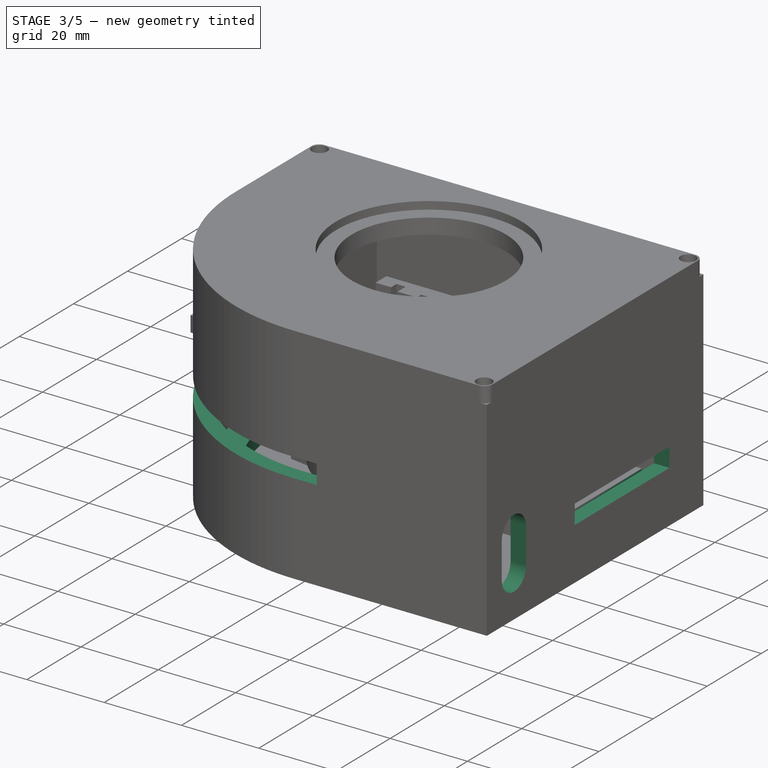
[diagram: stage 3 of 5 — iso view after this stage's code; geometry added in this stage tinted green]
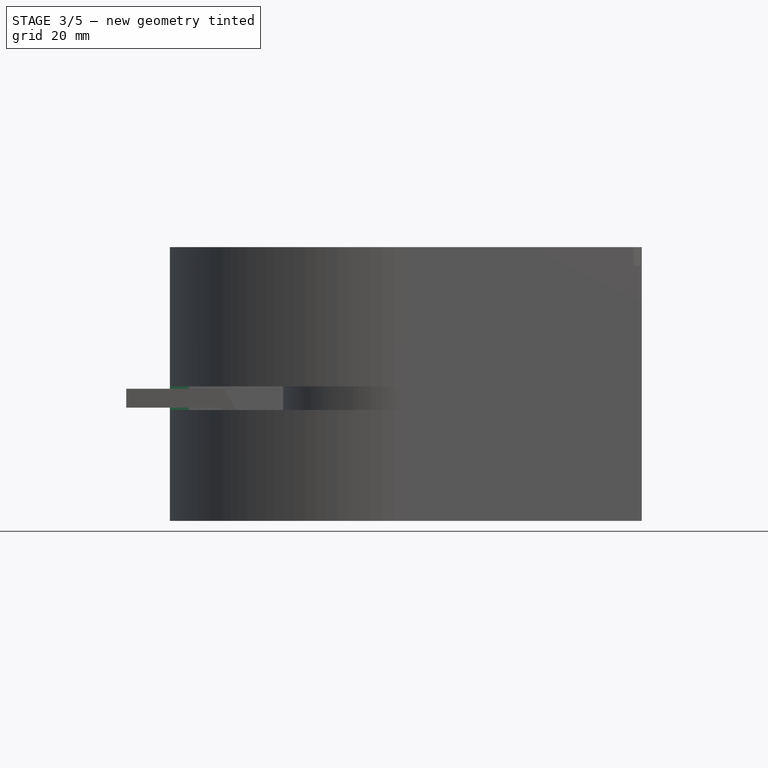
[diagram: stage 3 of 5 — front view after this stage's code; geometry added in this stage tinted green]
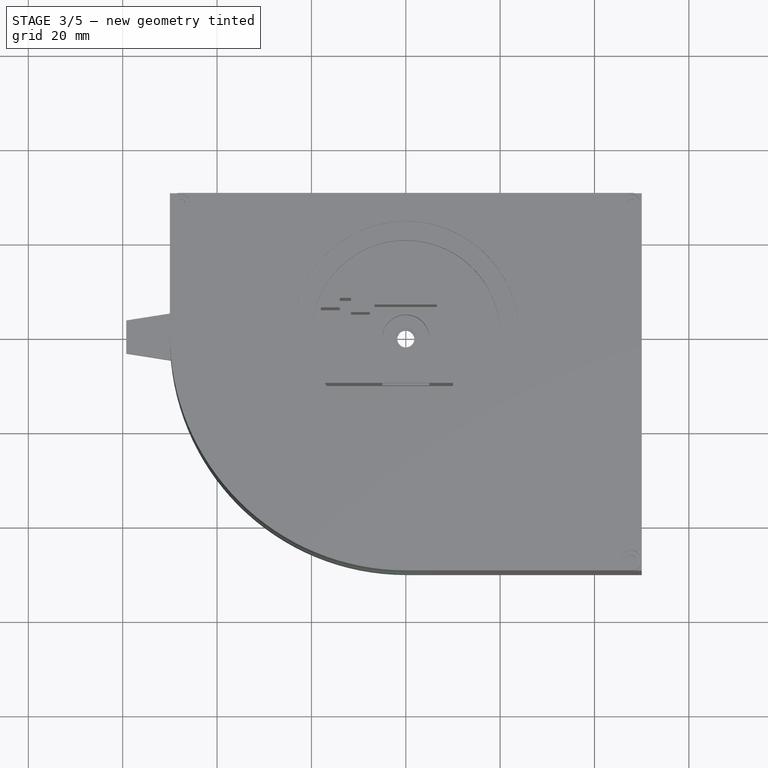
[diagram: stage 3 of 5 — top view after this stage's code; geometry added in this stage tinted green]
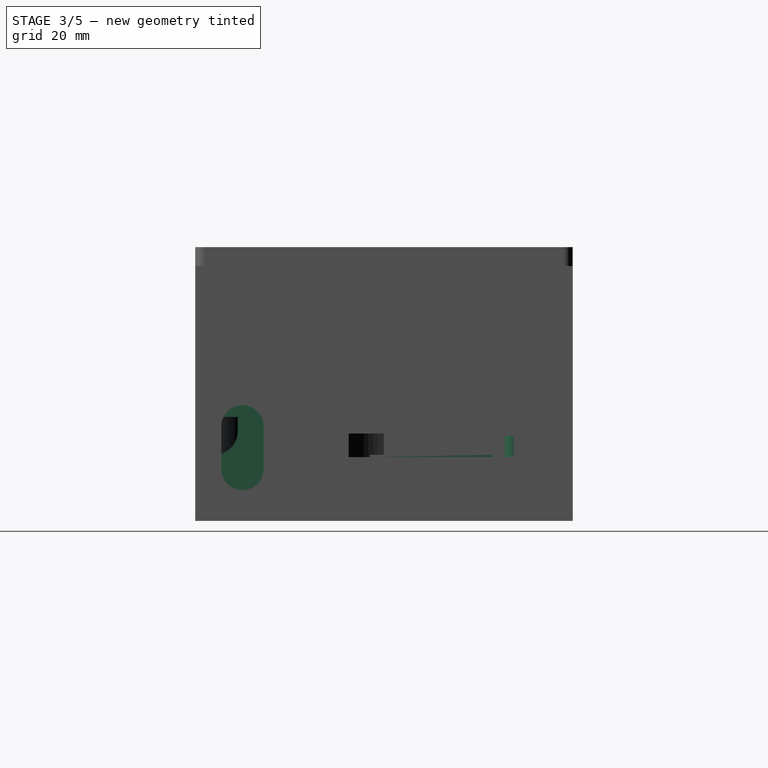
[diagram: stage 3 of 5 — right view after this stage's code; geometry added in this stage tinted green]
FEATURE [Sketcher::SketchObject] Sketch022
  ExternalGeometry = -> [Pocket]
  MapMode = 5
  Placement = pos=(0,0,18) rot=(0,0,1;0rad)
  Support = -> [Pocket]
  expr: Constraints[1] = dip.r2
  sketch-geometry (1):
    g0: Circle CenterX=36 CenterY=0 CenterZ=0 NormalX=0 NormalY=0 NormalZ=1 AngleXU=0 Radius=1.8
  constraints (3):
    c: PointOnObject(g0,g-1)
    c: Radius(g0) = 1.8
    c: DistanceX(g-1,g0) = 36
FEATURE [PartDesign::Pocket] Pocket013
  BaseFeature = -> Pocket
  Length = 16
  Length2 = 100
  Profile = -> Sketch022
  Type = 0
  expr: Length = dip.ctenka * 4
FEATURE [Sketcher::SketchObject] Sketch023
  ExternalGeometry = -> [Pocket013]
  MapMode = 5
  Placement = pos=(50,0,0) rot=(0.57735,0.57735,0.57735;2.0944rad)
  Support = -> [Pocket013]
  expr: Constraints[9] = dip.ctenka + dip.zazbol
  sketch-geometry (4):
    g0: LineSegment StartX=-17.5 StartY=22.5 StartZ=0 EndX=17.5 EndY=22.5 EndZ=0
    g1: LineSegment StartX=17.5 StartY=22.5 StartZ=0 EndX=17.5 EndY=17.5 EndZ=0
    g2: LineSegment StartX=17.5 StartY=17.5 StartZ=0 EndX=-17.5 EndY=17.5 EndZ=0
    g3: LineSegment StartX=-17.5 StartY=17.5 StartZ=0 EndX=-17.5 EndY=22.5 EndZ=0
  constraints (12):
    c: Coincident(g0,g1)
    c: Coincident(g1,g2)
    c: Coincident(g2,g3)
    c: Coincident(g3,g0)
    c: Horizontal(g0)
    c: Horizontal(g2)
    c: Vertical(g1)
    c: Vertical(g3)
    c: Symmetric(g1,g2,g-2)
    c: DistanceY(g1,g0) = 5
    c: DistanceX(g2,g1) = 35
    c: DistanceY(g-3,g1) = 17.5
FEATURE [PartDesign::Pocket] Pocket014
  BaseFeature = -> Pocket013
  Length = 4
  Length2 = 100
  Profile = -> Sketch023
  Type = 0
  expr: Length = dip.ctenka
FEATURE [Sketcher::SketchObject] Sketch024
  ExternalGeometry = -> [Pocket014]
  MapMode = 5
  Placement = pos=(0,-50,0) rot=(1,0,0;1.5708rad)
  Support = -> [Pocket014]
  expr: Constraints[8] = dip.ctenka + dip.zazbol
  sketch-geometry (4):
    g0: LineSegment StartX=6 StartY=32.5 StartZ=0 EndX=-50 EndY=32.5 EndZ=0
    g1: LineSegment StartX=-50 StartY=32.5 StartZ=0 EndX=-50 EndY=27.5 EndZ=0
    g2: LineSegment StartX=-50 StartY=27.5 StartZ=0 EndX=6 EndY=27.5 EndZ=0
    g3: LineSegment StartX=6 StartY=27.5 StartZ=0 EndX=6 EndY=32.5 EndZ=0
  constraints (12):
    c: Coincident(g0,g1)
    c: Coincident(g1,g2)
    c: Coincident(g2,g3)
    c: Coincident(g3,g0)
    c: Horizontal(g0)
    c: Horizontal(g2)
    c: Vertical(g1)
    c: Vertical(g3)
    c: DistanceY(g2,g0) = 5
    c: DistanceY(g-1,g2) = 27.5
    c: DistanceX(g-1,g0) = 6
    c: DistanceX(g0,g-1) = 50
FEATURE [PartDesign::Pocket] Pocket015
  BaseFeature = -> Pocket014
  Length = 56
  Length2 = 100
  Profile = -> Sketch024
  Type = 0
FEATURE [Sketcher::SketchObject] Sketch026
  ExternalGeometry = -> [Pocket015]
  MapMode = 5
  Placement = pos=(0,0,8) rot=(0,0,1;0rad)
  Support = -> [Pocket015]
  sketch-geometry (17):
    g0: LineSegment StartX=4 StartY=-35.2 StartZ=0 EndX=4 EndY=-46 EndZ=0
    g1: LineSegment StartX=4 StartY=-46 StartZ=0 EndX=1.40004e-11 EndY=-46 EndZ=0
    g2: ArcOfCircle CenterX=0 CenterY=0 CenterZ=0 NormalX=0 NormalY=0 NormalZ=1 AngleXU=0 Radius=39.7 StartAngle=3.22011 EndAngle=4.63387
    g3: ArcOfCircle CenterX=-38.2 CenterY=0 CenterZ=0 NormalX=0 NormalY=0 NormalZ=1 AngleXU=0 Radius=1.5 StartAngle=1.5708 EndAngle=3.14159
    g4: LineSegment StartX=-35.2 StartY=4 StartZ=0 EndX=-46 EndY=4 EndZ=0
    g5: LineSegment StartX=-46 StartY=4 StartZ=0 EndX=-46 EndY=-1e-11 EndZ=0
    g6: LineSegment StartX=-39.7 StartY=0 StartZ=0 EndX=-39.7 EndY=-0.9 EndZ=0
    g7: ArcOfCircle CenterX=0 CenterY=0 CenterZ=0 NormalX=0 NormalY=0 NormalZ=1 AngleXU=0 Radius=46 StartAngle=3.14159 EndAngle=4.71239
    g8: LineSegment StartX=4 StartY=-35.2 StartZ=0 EndX=1.5 EndY=-35.2 EndZ=0
    g9: ArcOfCircle [constr] CenterX=0 CenterY=0 CenterZ=0 NormalX=0 NormalY=0 NormalZ=1 AngleXU=0 Radius=40.7 StartAngle=3.14159 EndAngle=4.71239
    g10: LineSegment StartX=-35.2 StartY=4 StartZ=0 EndX=-35.2 EndY=1.5 EndZ=0
    g11: LineSegment StartX=-35.2 StartY=1.5 StartZ=0 EndX=-38.2 EndY=1.5 EndZ=0
    g12: ArcOfCircle CenterX=-40.6477 CenterY=-2.0627 CenterZ=0 NormalX=0 NormalY=0 NormalZ=1 AngleXU=0 Radius=1.5 StartAngle=5.50664 EndAngle=7.17011
    g13: LineSegment StartX=1.5 StartY=-35.2 StartZ=0 EndX=1.5 EndY=-38.2 EndZ=0
    g14: ArcOfCircle CenterX=0 CenterY=-38.2 CenterZ=0 NormalX=0 NormalY=0 NormalZ=1 AngleXU=0 Radius=1.5 StartAngle=4.71239 EndAngle=6.28319
    g15: LineSegment StartX=0 StartY=-39.7 StartZ=0 EndX=-0.9 EndY=-39.7 EndZ=0
    g16: ArcOfCircle CenterX=-2.0627 CenterY=-40.6477 CenterZ=0 NormalX=0 NormalY=0 NormalZ=1 AngleXU=0 Radius=1.5 StartAngle=0.683871 EndAngle=2.34734
  constraints (56):
    c: Coincident(g0,g1)
    c: PointOnObject(g3,g-1)
    c: Vertical(g0)
    c: Coincident(g1,g-3)
    c: Horizontal(g1)
    c: DistanceX(g1,g0) = 4
    c: Coincident(g2,g-1)
    c: PointOnObject(g3,g-1)
    c: Horizontal(g4)
    c: Coincident(g4,g5)
    c: Coincident(g5,g-3)
    c: Vertical(g5)
    c: Equal(g5,g1)
    c: Coincident(g7,g-1)
    c: Coincident(g7,g5)
    c: PointOnObject(g7,g-2)
    c: PointOnObject(g8,g0)
    c: Horizontal(g8)
    c: Coincident(g9,g-1)
    c: PointOnObject(g9,g-2)
    c: PointOnObject(g9,g-1)
    c: Radius(g9) = 40.7
    c: Coincident(g4,g10)
    c: Vertical(g10)
    c: Coincident(g10,g11)
    c: Coincident(g11,g3)
    c: Horizontal(g11)
    c: Vertical(g3,g3)
    c: PointOnObject(g12,g9)
    c: Coincident(g12,g6)
    c: Coincident(g12,g2)
    c: Radius(g2) = 39.7
    c: Coincident(g8,g13)
    c: Vertical(g13)
    c: PointOnObject(g14,g-2)
    c: PointOnObject(g14,g-2)
    c: Coincident(g13,g14)
    c: Horizontal(g13,g14)
    c: Radius(g14) = 1.5
    c: Coincident(g15,g14)
    c: Horizontal(g15)
    c: PointOnObject(g16,g9)
    c: Coincident(g16,g2)
    c: Coincident(g16,g15)
    c: Radius(g16) = 1.5
    c: DistanceY(g9,g14) = 1
    c: Equal(g16,g12)
    c: Equal(g6,g15)
    c: Coincident(g6,g3)
    c: Vertical(g6)
    c: Equal(g8,g10)
    c: Equal(g4,g0)
    c: Coincident(g0,g8)
    c: DistanceY(g13,g8) = 3
    c: DistanceX(g15,g14) = 0.9
    c: DistanceX(g9,g3) = 1
FEATURE [PartDesign::Pad] Pad008
  BaseFeature = -> Pocket015
  Length = 4
  Length2 = 100
  Profile = -> Sketch026
  Type = 0
  expr: Length = dip.ctenka
FEATURE [App::DocumentObjectGroupPython] SimpleGroup005  # scripted group (container) (typed FeaturePython)
  AnimationStepTime = 0
  AnimationSteps = 30
  Distance = 0
  Revolutions = 0.25
FEATURE [App::DocumentObjectGroupPython] SimpleGroup006  # scripted group (container) (typed FeaturePython)
  AnimationStepTime = 0
  AnimationSteps = 20
  Distance = 12
  Revolutions = 0
FEATURE [App::DocumentObjectGroupPython] SimpleGroup007  # scripted group (container) (typed FeaturePython)
  AnimationStepTime = 0
  AnimationSteps = 50
  Distance = 55
  Revolutions = 0
FEATURE [App::DocumentObjectGroupPython] SimpleGroup008  # scripted group (container) (typed FeaturePython)
  AnimationStepTime = 0
  AnimationSteps = 60
  Distance = 60
  Revolutions = 0
FEATURE [App::DocumentObjectGroupPython] SimpleGroup009  # scripted group (container) (typed FeaturePython)
  AnimationStepTime = 0
  AnimationSteps = 20
  Distance = 15
  Revolutions = 0
FEATURE [App::DocumentObjectGroupPython] SimpleGroup010  # scripted group (container) (typed FeaturePython)
  AnimationStepTime = 0
  AnimationSteps = 60
  Distance = 45
  Revolutions = 0
FEATURE [App::DocumentObjectGroupPython] SimpleGroup011  # scripted group (container) (typed FeaturePython)
  AnimationStepTime = 0
  AnimationSteps = 50
  Distance = 51
  Revolutions = 0
FEATURE [Part::Feature] trajectory_line
  shape: bbox 2e-07 x 2e-07 x 140 mm, 0 faces, 0 solids (baked)
FEATURE [App::DocumentObjectGroupPython] SimpleGroup  # scripted group (container) (typed FeaturePython)
  AnimationStepTime = 0
  AnimationSteps = 100
  Distance = 120
  Group = -> [trajectory_line]
  Revolutions = 0
FEATURE [Part::Feature] trajectory_line001
  shape: bbox 2e-07 x 2e-07 x 60 mm, 0 faces, 0 solids (baked)
FEATURE [App::DocumentObjectGroupPython] SimpleGroup001  # scripted group (container) (typed FeaturePython)
  AnimationStepTime = 0
  AnimationSteps = 100
  Distance = 60
  Group = -> [trajectory_line001]
  Revolutions = 0
FEATURE [Part::Feature] trajectory_line002
  shape: bbox 2e-07 x 55 x 2e-07 mm, 0 faces, 0 solids (baked)
FEATURE [App::DocumentObjectGroupPython] SimpleGroup002  # scripted group (container) (typed FeaturePython)
  AnimationStepTime = 0
  AnimationSteps = 60
  Distance = 55
  Group = -> [trajectory_line002]
  Revolutions = 0
FEATURE [Part::Feature] trajectory_line003
  shape: bbox 2e-07 x 2e-07 x 140 mm, 0 faces, 0 solids (baked)
FEATURE [App::DocumentObjectGroupPython] SimpleGroup003  # scripted group (container) (typed FeaturePython)
  AnimationStepTime = 0
  AnimationSteps = 50
  Distance = 153
  Group = -> [trajectory_line003]
  Revolutions = 0
FEATURE [Part::Feature] trajectory_line004
  shape: bbox 2e-07 x 2e-07 x 130 mm, 0 faces, 0 solids (baked)
FEATURE [App::DocumentObjectGroupPython] SimpleGroup004  # scripted group (container) (typed FeaturePython)
  AnimationStepTime = 0
  AnimationSteps = 50
  Distance = 155
  Group = -> [trajectory_line004]
  Revolutions = 0
FEATURE [App::DocumentObjectGroupPython] ExplodedAssembly  # scripted group (container) (typed FeaturePython)
  AnimationStep = 0
  CurrentTrajectory = 0
  Group = -> [SimpleGroup,SimpleGroup001,SimpleGroup002,SimpleGroup003,SimpleGroup004,SimpleGroup005,SimpleGroup006,SimpleGroup007,SimpleGroup008,SimpleGroup009,SimpleGroup010,SimpleGroup011]
  InAnimation = false
  RemoveAllTrajectories = false
  ResetAnimation = false
FEATURE [Sketcher::SketchObject] Sketch054
  ExternalGeometry = -> [Pad008]
  MapMode = 5
  Placement = pos=(0,26,0) rot=(1,0,0;1.5708rad)
  Support = -> [Pad008]
  sketch-geometry (4):
    g0: LineSegment StartX=9 StartY=22 StartZ=0 EndX=34 EndY=22 EndZ=0
    g1: LineSegment StartX=34 StartY=22 StartZ=0 EndX=34 EndY=17.5 EndZ=0
    g2: LineSegment StartX=34 StartY=17.5 StartZ=0 EndX=9 EndY=17.5 EndZ=0
    g3: LineSegment StartX=9 StartY=17.5 StartZ=0 EndX=9 EndY=22 EndZ=0
  constraints (12):
    c: Coincident(g0,g1)
    c: Coincident(g1,g2)
    c: Coincident(g2,g3)
    c: Coincident(g3,g0)
    c: Horizontal(g0)
    c: Horizontal(g2)
    c: Vertical(g1)
    c: Vertical(g3)
    c: DistanceY(g-3,g1) = 9.5
    c: DistanceY(g1,g0) = 4.5
    c: DistanceX(g0,g0) = 25
    c: DistanceX(g1,g-3) = 12
FEATURE [PartDesign::Pad] Pad023
  BaseFeature = -> Pad008
  Length = 15
  Length2 = 100
  Profile = -> Sketch054
  Type = 0
FEATURE [PartDesign::Body] Body003  label="барабан"
  Group = -> [CopyPocket005,Sketch010,Pad004,Sketch011,Pad005,Sketch012,Pocket006,Sketch013,Pocket007,Sketch050,Pad025,Sketch060,Pocket031]
  Origin = -> Origin003
  Tip = -> Pocket031
FEATURE [PartDesign::Pocket] Pocket027
  BaseFeature = -> Pad023
  Length = 5
  Length2 = 100
  Profile = -> Sketch055
  Type = 0
FEATURE [Sketcher::SketchObject] Sketch056
  ExternalGeometry = -> [Pocket027]
  MapMode = 5
  Placement = pos=(50,0,0) rot=(0.57735,0.57735,0.57735;2.0944rad)
  Support = -> [Pocket027]
  sketch-geometry (4):
    g0: LineSegment StartX=30 StartY=4 StartZ=0 EndX=-50 EndY=4 EndZ=0
    g1: LineSegment StartX=-50 StartY=4 StartZ=0 EndX=-50 EndY=0 EndZ=0
    g2: LineSegment StartX=-50 StartY=0 StartZ=0 EndX=30 EndY=0 EndZ=0
    g3: LineSegment StartX=30 StartY=0 StartZ=0 EndX=30 EndY=4 EndZ=0
  constraints (11):
    c: Coincident(g0,g1)
    c: Coincident(g1,g2)
    c: Coincident(g2,g3)
    c: Coincident(g3,g0)
    c: Horizontal(g0)
    c: Horizontal(g2)
    c: Vertical(g1)
    c: Vertical(g3)
    c: Coincident(g1,g-4)
    c: DistanceY(g0,g-3) = 4
    c: Vertical(g0,g-3)
FEATURE [PartDesign::Pocket] Pocket028
  BaseFeature = -> Pocket027
  Length = 100
  Length2 = 100
  Profile = -> Sketch056
  Type = 0
FEATURE [Sketcher::SketchObject] Sketch057
  ExternalGeometry = -> [Pocket028]
  MapMode = 5
  Placement = pos=(50,0,0) rot=(0.57735,0.57735,0.57735;2.0944rad)
  Support = -> [Pocket028]
  sketch-geometry (4):
    g0: ArcOfCircle CenterX=-40 CenterY=24 CenterZ=0 NormalX=0 NormalY=0 NormalZ=1 AngleXU=0 Radius=4.5 StartAngle=-8.35e-14 EndAngle=3.14159
    g1: ArcOfCircle CenterX=-40 CenterY=15 CenterZ=0 NormalX=0 NormalY=0 NormalZ=1 AngleXU=0 Radius=4.5 StartAngle=3.14159 EndAngle=6.28319
    g2: LineSegment StartX=-44.5 StartY=24 StartZ=0 EndX=-44.5 EndY=15 EndZ=0
    g3: LineSegment StartX=-35.5 StartY=24 StartZ=0 EndX=-35.5 EndY=15 EndZ=0
  constraints (10):
    c: Tangent(g0,g3) = 1.5708
    c: Tangent(g0,g2) = -1.5708
    c: Tangent(g2,g1) = -1.5708
    c: Tangent(g3,g1) = 1.5708
    c: Vertical(g2)
    c: Equal(g0,g1)
    c: DistanceY(g-4,g1) = 7
    c: DistanceY(g1,g0) = 9
    c: DistanceX(g-4,g1) = 10
    c: Radius(g1) = 4.5
FEATURE [PartDesign::Pocket] Pocket029
  BaseFeature = -> Pocket028
  Length = 5
  Length2 = 100
  Profile = -> Sketch057
  Type = 0
FEATURE [Sketcher::SketchObject] Sketch058
  ExternalGeometry = -> [Pocket029]
  MapMode = 5
  Placement = pos=(0,0,8) rot=(0,0,1;0rad)
  Support = -> [Pocket029]
  sketch-geometry (6):
    g0: LineSegment StartX=37 StartY=-27 StartZ=0 EndX=9 EndY=-27 EndZ=0
    g1: LineSegment StartX=9 StartY=-27 StartZ=0 EndX=9 EndY=-46 EndZ=0
    g2: LineSegment StartX=9 StartY=-46 StartZ=0 EndX=11 EndY=-46 EndZ=0
    g3: LineSegment StartX=11 StartY=-46 StartZ=0 EndX=11 EndY=-29 EndZ=0
    g4: LineSegment StartX=11 StartY=-29 StartZ=0 EndX=37 EndY=-29 EndZ=0
    g5: LineSegment StartX=37 StartY=-29 StartZ=0 EndX=37 EndY=-27 EndZ=0
  constraints (18):
    c: Horizontal(g0)
    c: Coincident(g0,g1)
    c: Vertical(g1)
    c: Coincident(g1,g2)
    c: Coincident(g3,g4)
    c: Horizontal(g4)
    c: Coincident(g4,g5)
    c: Coincident(g5,g0)
    c: Vertical(g3)
    c: DistanceX(g0,g3) = 2
    c: DistanceY(g3,g0) = 2
    c: DistanceY(g-4,g4) = 17
    c: DistanceX(g2,g-4) = 35
    c: Horizontal(g2)
    c: Vertical(g5)
    c: DistanceX(g4,g-4) = 9
    c: Coincident(g3,g2)
    c: PointOnObject(g2,g-4)
FEATURE [PartDesign::Pad] Pad024
  BaseFeature = -> Pocket029
  Length = 35
  Length2 = 100
  Profile = -> Sketch058
  Type = 0
FEATURE [Sketcher::SketchObject] Sketch066
  ExternalGeometry = -> [Pad024]
  MapMode = 5
  Placement = pos=(11,0,0) rot=(0.57735,0.57735,0.57735;2.0944rad)
  Support = -> [Pad024]
  sketch-geometry (4):
    g0: ArcOfCircle CenterX=-46 CenterY=23 CenterZ=0 NormalX=0 NormalY=0 NormalZ=1 AngleXU=0 Radius=5 StartAngle=4.71239 EndAngle=6.28319
    g1: LineSegment StartX=-41 StartY=23 StartZ=0 EndX=-41 EndY=43 EndZ=0
    g2: LineSegment StartX=-41 StartY=43 StartZ=0 EndX=-46 EndY=43 EndZ=0
    g3: LineSegment StartX=-46 StartY=43 StartZ=0 EndX=-46 EndY=18 EndZ=0
  constraints (11):
    c: Tangent(g0,g1) = -1.5708
    c: Coincident(g1,g2)
    c: Coincident(g2,g3)
    c: Coincident(g3,g0)
    c: PointOnObject(g1,g-3)
    c: Coincident(g2,g-3)
    c: Vertical(g3)
    c: PointOnObject(g0,g3)
    c: Vertical(g1)
    c: Radius(g0) = 5
    c: DistanceY(g-4,g0) = 10
FEATURE [PartDesign::Pocket] Pocket037
  BaseFeature = -> Pad024
  Length = 5
  Length2 = 100
  Profile = -> Sketch066
  Type = 0
FEATURE [Sketcher::SketchObject] Sketch067
  ExternalGeometry = -> [Pocket037]
  MapMode = 5
  Placement = pos=(0,-46,0) rot=(0,0.707107,0.707107;3.14159rad)
  Support = -> [Pocket037]
  sketch-geometry (8):
    g0: LineSegment StartX=-39.5 StartY=38 StartZ=0 EndX=-33.5 EndY=38 EndZ=0
    g1: LineSegment StartX=-33.5 StartY=38 StartZ=0 EndX=-33.5 EndY=26 EndZ=0
    g2: LineSegment StartX=-33.5 StartY=26 StartZ=0 EndX=-39.5 EndY=26 EndZ=0
    g3: LineSegment StartX=-39.5 StartY=26 StartZ=0 EndX=-39.5 EndY=38 EndZ=0
    g4: LineSegment StartX=-24.5 StartY=38 StartZ=0 EndX=-18.5 EndY=38 EndZ=0
    g5: LineSegment StartX=-18.5 StartY=38 StartZ=0 EndX=-18.5 EndY=26 EndZ=0
    g6: LineSegment StartX=-18.5 StartY=26 StartZ=0 EndX=-24.5 EndY=26 EndZ=0
    g7: LineSegment StartX=-24.5 StartY=26 StartZ=0 EndX=-24.5 EndY=38 EndZ=0
  constraints (24):
    c: Coincident(g0,g1)
    c: Coincident(g1,g2)
    c: Coincident(g2,g3)
    c: Coincident(g3,g0)
    c: Horizontal(g0)
    c: Horizontal(g2)
    c: Vertical(g1)
    c: Vertical(g3)
    c: Coincident(g4,g5)
    c: Coincident(g5,g6)
    c: Coincident(g6,g7)
    c: Coincident(g7,g4)
    c: Horizontal(g4)
    c: Horizontal(g6)
    c: Vertical(g5)
    c: Vertical(g7)
    c: Horizontal(g4,g0)
    c: DistanceY(g1,g0) = 12
    c: DistanceX(g1,g6) = 9
    c: DistanceY(g-3,g2) = 18
    c: Equal(g0,g4)
    c: Equal(g7,g1)
    c: DistanceX(g0,g0) = 6
    c: DistanceX(g-3,g2) = 6.5
FEATURE [PartDesign::Pad] Pad026
  BaseFeature = -> Pocket037
  Length = 10
  Length2 = 100
  Profile = -> Sketch067
  Type = 0
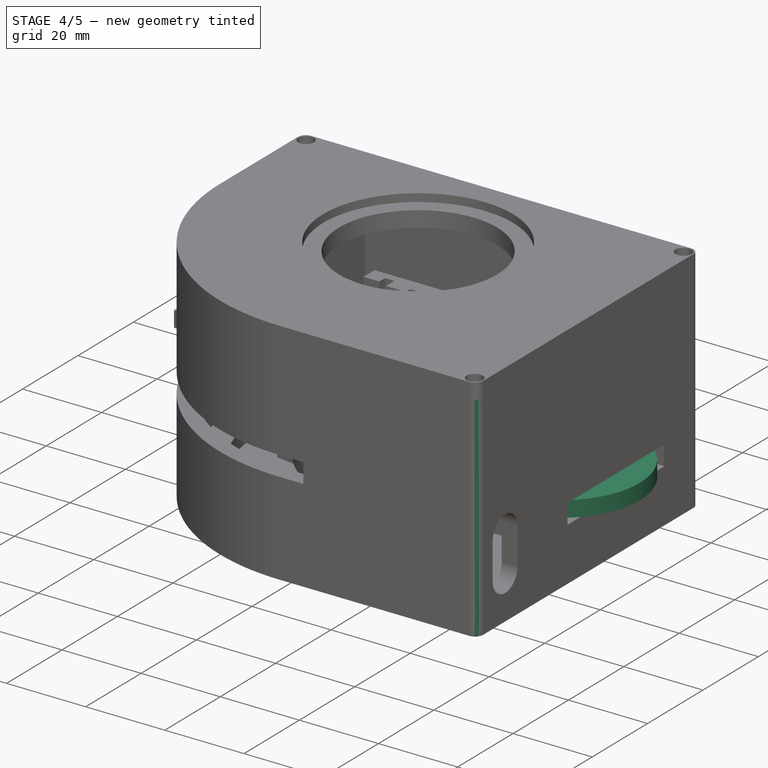
[diagram: stage 4 of 5 — iso view after this stage's code; geometry added in this stage tinted green]
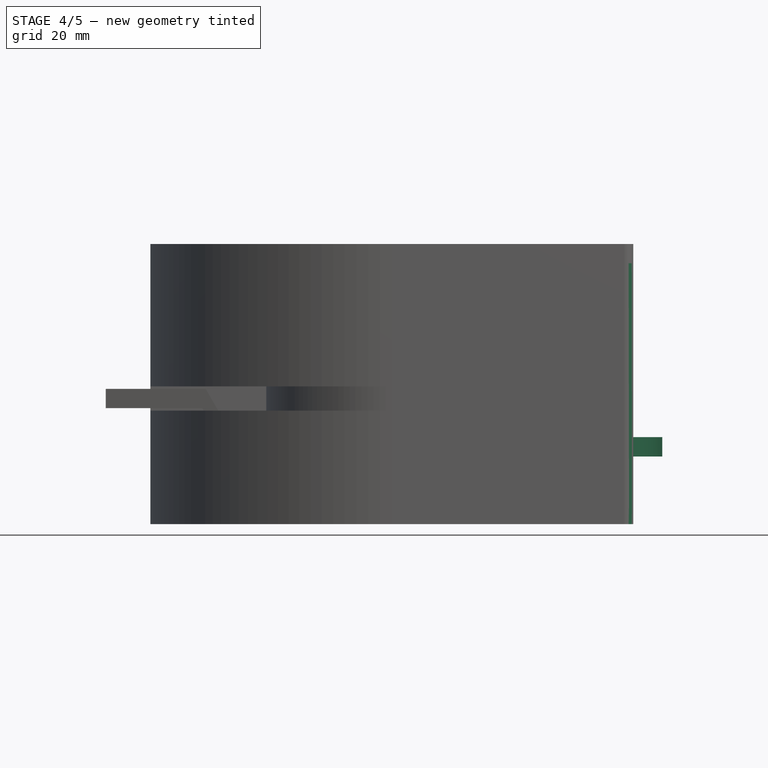
[diagram: stage 4 of 5 — front view after this stage's code; geometry added in this stage tinted green]
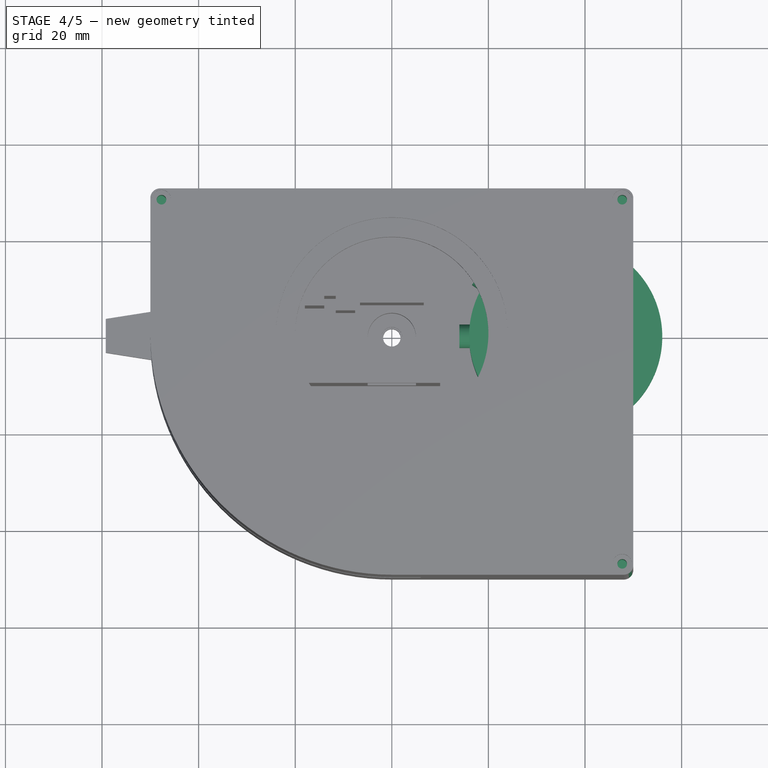
[diagram: stage 4 of 5 — top view after this stage's code; geometry added in this stage tinted green]
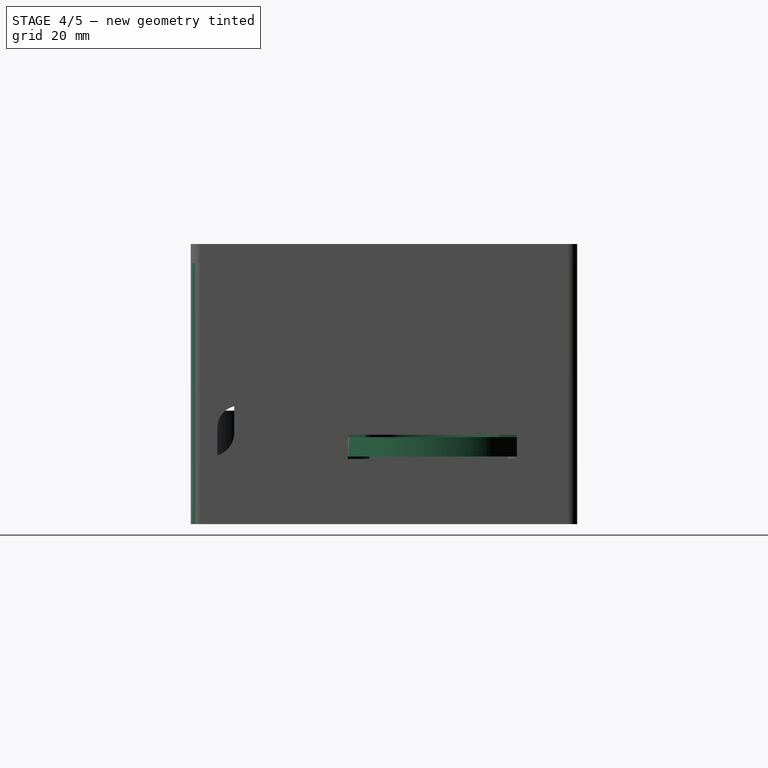
[diagram: stage 4 of 5 — right view after this stage's code; geometry added in this stage tinted green]
FEATURE [PartDesign::ShapeBinder] CopyPocket005
  TraceSupport = false
FEATURE [Sketcher::SketchObject] Sketch010
  MapMode = 5
  Placement = pos=(0,0,18) rot=(0,0,1;0rad)
  Support = -> [CopyPocket005]
  expr: Constraints[2] = dip.rbarab
  expr: Constraints[1] = dip.rastkrug
  sketch-geometry (1):
    g0: Circle CenterX=36 CenterY=0 CenterZ=0 NormalX=0 NormalY=0 NormalZ=1 AngleXU=0 Radius=20
  constraints (3):
    c: PointOnObject(g0,g-1)
    c: DistanceX(g-1,g0) = 36
    c: Radius(g0) = 20
FEATURE [PartDesign::Pad] Pad004
  Length = 4
  Length2 = 100
  Profile = -> Sketch010
  Type = 0
  expr: Length = dip.ctenka
FEATURE [Sketcher::SketchObject] Sketch011
  ExternalGeometry = -> [Pad004]
  MapMode = 5
  Placement = pos=(0,0,22) rot=(0,0,1;0rad)
  Support = -> [Pad004]
  expr: Constraints[13] = dip.rbarab - dip.dlindiod
  sketch-geometry (10):
    g0: ArcOfCircle CenterX=36 CenterY=-1.8e-15 CenterZ=0 NormalX=0 NormalY=0 NormalZ=1 AngleXU=0 Radius=20 StartAngle=1.66679 EndAngle=4.6164
    g1: ArcOfCircle CenterX=36 CenterY=-1.8e-15 CenterZ=0 NormalX=0 NormalY=0 NormalZ=1 AngleXU=0 Radius=14 StartAngle=1.66679 EndAngle=4.6164
    g2: LineSegment StartX=34.6582 StartY=13.9355 StartZ=0 EndX=34.0831 EndY=19.9079 EndZ=0
    g3: LineSegment StartX=34.6582 StartY=-13.9355 StartZ=0 EndX=34.0831 EndY=-19.9079 EndZ=0
    g4: LineSegment [constr] StartX=34.0831 StartY=19.9079 StartZ=0 EndX=36 EndY=-3.6e-15 EndZ=0
    g5: LineSegment [constr] StartX=34.0831 StartY=-19.9079 StartZ=0 EndX=36 EndY=-3.6e-15 EndZ=0
    g6: LineSegment [constr] StartX=23.8248 StartY=-15.8671 StartZ=0 EndX=36 EndY=0 EndZ=0
    g7: LineSegment [constr] StartX=16.9257 StartY=-6.01412 StartZ=0 EndX=36 EndY=-1.8e-15 EndZ=0
    g8: LineSegment [constr] StartX=23.8248 StartY=15.8671 StartZ=0 EndX=36 EndY=-1.8e-15 EndZ=0
    g9: LineSegment [constr] StartX=16.9257 StartY=6.01412 StartZ=0 EndX=36 EndY=-1.8e-15 EndZ=0
  constraints (29):
    c: Coincident(g0,g-3)
    c: PointOnObject(g0,g-3)
    c: Coincident(g1,g0)
    c: Coincident(g2,g1)
    c: Coincident(g2,g0)
    c: Coincident(g3,g1)
    c: Coincident(g3,g0)
    c: Coincident(g4,g0)
    c: Coincident(g4,g0)
    c: Coincident(g5,g0)
    c: Coincident(g5,g0)
    c: PointOnObject(g1,g4)
    c: PointOnObject(g1,g5)
    c: Radius(g1) = 14
    c: Angle(g4,g5) = 2.94961
    c: PointOnObject(g6,g0)
    c: Coincident(g6,g0)
    c: PointOnObject(g7,g0)
    c: PointOnObject(g8,g0)
    c: Coincident(g8,g7)
    c: Coincident(g9,g0)
    c: Angle(g0,g8) = 0.523599
    c: Coincident(g7,g0)
    c: PointOnObject(g9,g0)
    c: Angle(g7,g6) = 0.610865
    c: Angle(g9,g7) = 0.610865
    c: Angle(g8,g9) = 0.610865
    c: Vertical(g0,g0)
    c: Vertical(g7,g9)
FEATURE [PartDesign::Pad] Pad005
  BaseFeature = -> Pad004
  Length = 8
  Length2 = 100
  Profile = -> Sketch011
  Type = 0
  expr: Length = dip.ctenka * 2
FEATURE [Part::Cylinder] Cylinder  label="Цилиндр"
  Angle = 360
  AttacherType = Attacher::AttachEngine3D
  Height = 10
  Placement = pos=(14,0,26) rot=(0,1,0;1.5708rad)
  Radius = 2.45
FEATURE [Part::Cylinder] Cylinder001  label="Цилиндр001"
  Angle = 360
  AttacherType = Attacher::AttachEngine3D
  Height = 10
  Placement = pos=(17.9787,12.6187,26) rot=(0.287968,0.913318,-0.287968;1.66134rad)
  Radius = 2.45
FEATURE [Part::Cylinder] Cylinder002  label="Цилиндр002"
  Angle = 360
  AttacherType = Attacher::AttachEngine3D
  Height = 10
  Placement = pos=(17.9787,-12.6187,26) rot=(-0.287968,0.913318,0.287968;1.66134rad)
  Radius = 2.45
FEATURE [Part::MultiFuse] Fusion
  Shapes = -> [Cylinder,Cylinder002,Cylinder001]
FEATURE [Sketcher::SketchObject] Sketch071
  MapMode = 5
  Placement = pos=(18.5,0,0) rot=(0.57735,-0.57735,-0.57735;2.0944rad)
  sketch-geometry (10):
    g0: LineSegment StartX=46 StartY=38 StartZ=0 EndX=36 EndY=38 EndZ=0
    g1: LineSegment StartX=36 StartY=38 StartZ=0 EndX=36 EndY=26 EndZ=0
    g2: LineSegment StartX=36 StartY=26 StartZ=0 EndX=46 EndY=26 EndZ=0
    g3: LineSegment StartX=46 StartY=26 StartZ=0 EndX=46 EndY=27.8223 EndZ=0
    g4: LineSegment StartX=46 StartY=27.8223 StartZ=0 EndX=41 EndY=33 EndZ=0
    g5: LineSegment StartX=46 StartY=38 StartZ=0 EndX=46 EndY=30.8223 EndZ=0
    g6: LineSegment StartX=46 StartY=30.8223 StartZ=0 EndX=41 EndY=36 EndZ=0
    g7: LineSegment StartX=41 StartY=36 StartZ=0 EndX=37.8439 EndY=36 EndZ=0
    g8: LineSegment StartX=37.8439 StartY=36 StartZ=0 EndX=39.0603 EndY=32.658 EndZ=0
    g9: ArcOfCircle CenterX=40 CenterY=33 CenterZ=0 NormalX=0 NormalY=0 NormalZ=1 AngleXU=0 Radius=1 StartAngle=3.49066 EndAngle=6.28319
  constraints (19):
    c: Coincident(g0,g1)
    c: Coincident(g1,g2)
    c: Coincident(g2,g3)
    c: Coincident(g3,g4)
    c: Coincident(g0,g5)
    c: Coincident(g5,g6)
    c: Coincident(g6,g7)
    c: Horizontal(g7)
    c: Coincident(g7,g8)
    c: Parallel(g6,g4)
    c: Vertical(g4,g6)
    c: DistanceY(g4,g6) = 3
    c: Angle(g5,g6) = 0.767945
    c: Coincident(g9,g4)
    c: Tangent(g9,g8) = -1.5708
    c: Angle(g8,g7) = 1.22173
    c: Radius(g9) = 1
    c: DistanceX(g6,g5) = 5
    c: Horizontal(g9,g4)
FEATURE [PartDesign::Pocket] Pocket041
  BaseFeature = -> Pad026
  Length = 21
  Length2 = 100
  Profile = -> Sketch071
  Type = 0
FEATURE [Sketcher::SketchObject] Sketch072
  ExternalGeometry = -> [Pocket041]
  MapMode = 5
  Placement = pos=(0,-44.9872,16.374) rot=(0,0.819152,0.573576;3.14159rad)
  Support = -> [Pocket041]
  sketch-geometry (12):
    g0: LineSegment StartX=19.5 StartY=-37.8439 StartZ=0 EndX=18.5 EndY=-37.8439 EndZ=0
    g1: LineSegment StartX=18.5 StartY=-37.8439 StartZ=0 EndX=18.5 EndY=-46 EndZ=0
    g2: LineSegment StartX=18.5 StartY=-46 StartZ=0 EndX=19.5 EndY=-37.8439 EndZ=0
    g3: LineSegment StartX=23.5 StartY=-37.8439 StartZ=0 EndX=24.5 EndY=-37.8439 EndZ=0
    g4: LineSegment StartX=24.5 StartY=-37.8439 StartZ=0 EndX=24.5 EndY=-46 EndZ=0
    g5: LineSegment StartX=24.5 StartY=-46 StartZ=0 EndX=23.5 EndY=-37.8439 EndZ=0
    g6: LineSegment StartX=34.5 StartY=-37.8439 StartZ=0 EndX=33.5 EndY=-37.8439 EndZ=0
    g7: LineSegment StartX=33.5 StartY=-37.8439 StartZ=0 EndX=33.5 EndY=-46 EndZ=0
    g8: LineSegment StartX=33.5 StartY=-46 StartZ=0 EndX=34.5 EndY=-37.8439 EndZ=0
    g9: LineSegment StartX=38.5 StartY=-37.8439 StartZ=0 EndX=39.5 EndY=-37.8439 EndZ=0
    g10: LineSegment StartX=39.5 StartY=-37.8439 StartZ=0 EndX=39.5 EndY=-46 EndZ=0
    g11: LineSegment StartX=39.5 StartY=-46 StartZ=0 EndX=38.5 EndY=-37.8439 EndZ=0
FEATURE [PartDesign::Pocket] Pocket042
  BaseFeature = -> Pocket041
  Length = 10
  Length2 = 100
  Profile = -> Sketch072
  Type = 0
FEATURE [Sketcher::SketchObject] Sketch073
  ExternalGeometry = -> [Pocket042]
  MapMode = 5
  Placement = pos=(0,0,8) rot=(0,0,1;0rad)
  Support = -> [Pocket042]
  sketch-geometry (4):
    g0: LineSegment StartX=46 StartY=-40 StartZ=0 EndX=11 EndY=-40 EndZ=0
    g1: LineSegment StartX=11 StartY=-40 StartZ=0 EndX=11 EndY=-42 EndZ=0
    g2: LineSegment StartX=11 StartY=-42 StartZ=0 EndX=46 EndY=-42 EndZ=0
    g3: LineSegment StartX=46 StartY=-42 StartZ=0 EndX=46 EndY=-40 EndZ=0
  constraints (12):
    c: Coincident(g0,g1)
    c: Coincident(g1,g2)
    c: Coincident(g2,g3)
    c: Coincident(g3,g0)
    c: Horizontal(g0)
    c: Horizontal(g2)
    c: Vertical(g1)
    c: Vertical(g3)
    c: PointOnObject(g0,g-3)
    c: DistanceY(g2,g0) = 2
    c: DistanceY(g-3,g2) = 4
    c: DistanceX(g1,g2) = 35
FEATURE [PartDesign::Pocket] Pocket043
  BaseFeature = -> Pocket042
  Length = 1
  Length2 = 100
  Profile = -> Sketch073
  Type = 0
FEATURE [PartDesign::Fillet] Fillet003
  Base = -> Pocket043 [Edge262,Edge218]
  BaseFeature = -> Pocket043
  Radius = 0.99
FEATURE [Sketcher::SketchObject] Sketch074
  ExternalGeometry = -> [Fillet003]
  MapMode = 5
  Placement = pos=(0,0,58) rot=(0,0,1;0rad)
  Support = -> [Fillet003]
  sketch-geometry (3):
    g0: Circle CenterX=47.7 CenterY=-47.7 CenterZ=0 NormalX=0 NormalY=0 NormalZ=1 AngleXU=0 Radius=1
    g1: Circle CenterX=47.7 CenterY=27.7 CenterZ=0 NormalX=0 NormalY=0 NormalZ=1 AngleXU=0 Radius=1
    g2: Circle CenterX=-47.7 CenterY=27.7 CenterZ=0 NormalX=0 NormalY=0 NormalZ=1 AngleXU=0 Radius=1
  constraints (9):
    c: Equal(g2,g1)
    c: Equal(g1,g0)
    c: Radius(g0) = 1
    c: DistanceX(g0,g-3) = 2.3
    c: DistanceY(g-3,g0) = 2.3
    c: Vertical(g0,g1)
    c: Horizontal(g1,g2)
    c: DistanceY(g1,g-4) = 2.3
    c: DistanceX(g-4,g2) = 2.3
FEATURE [PartDesign::Pocket] Pocket044
  BaseFeature = -> Fillet003
  Length = 8
  Length2 = 100
  Profile = -> Sketch074
  Type = 0
FEATURE [PartDesign::Fillet] Fillet004
  Base = -> Pocket044 [Edge258,Edge256,Edge261]
  BaseFeature = -> Pocket044
  Radius = 2
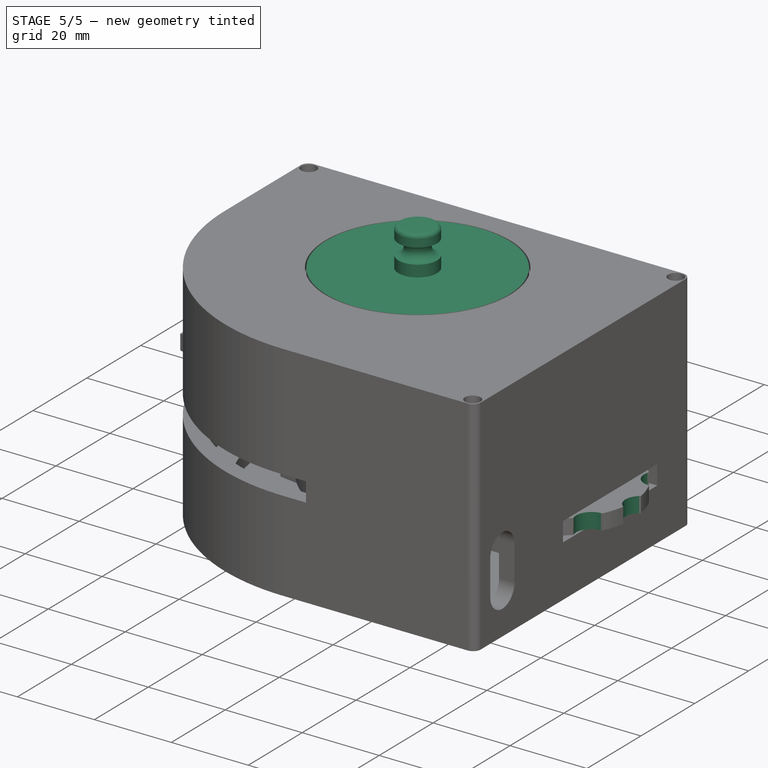
[diagram: stage 5 of 5 — iso view after this stage's code; geometry added in this stage tinted green]
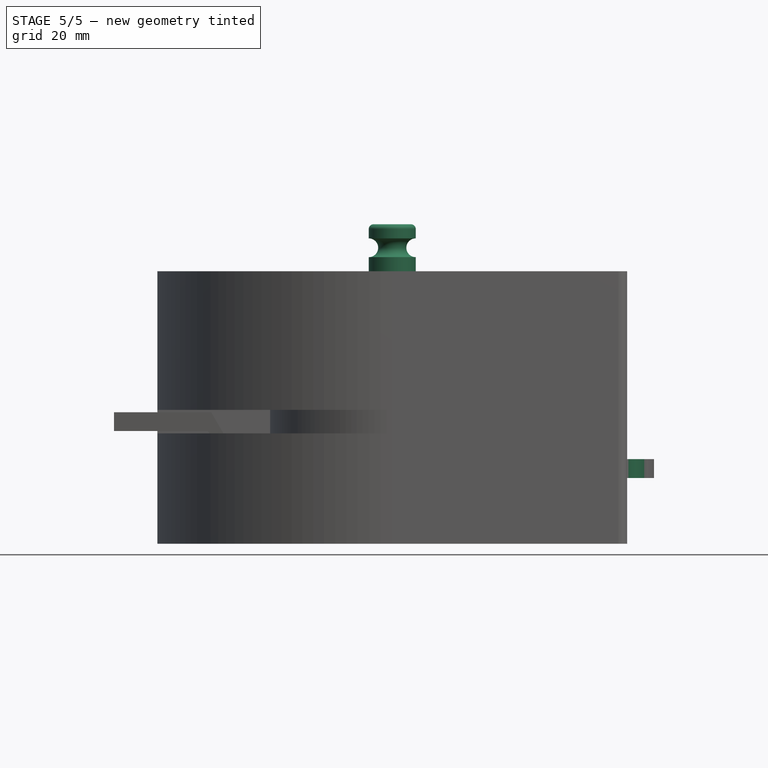
[diagram: stage 5 of 5 — front view after this stage's code; geometry added in this stage tinted green]
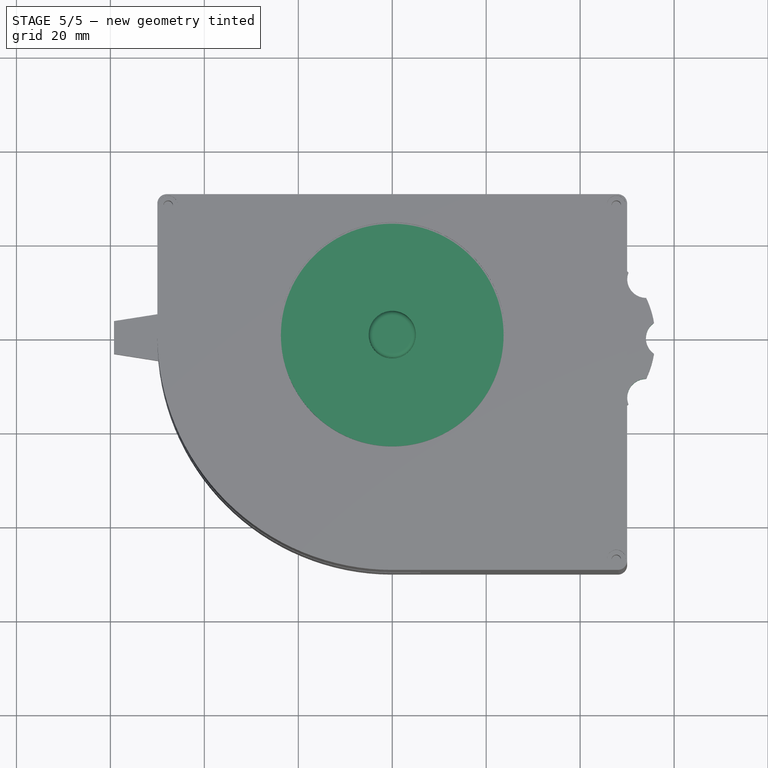
[diagram: stage 5 of 5 — top view after this stage's code; geometry added in this stage tinted green]
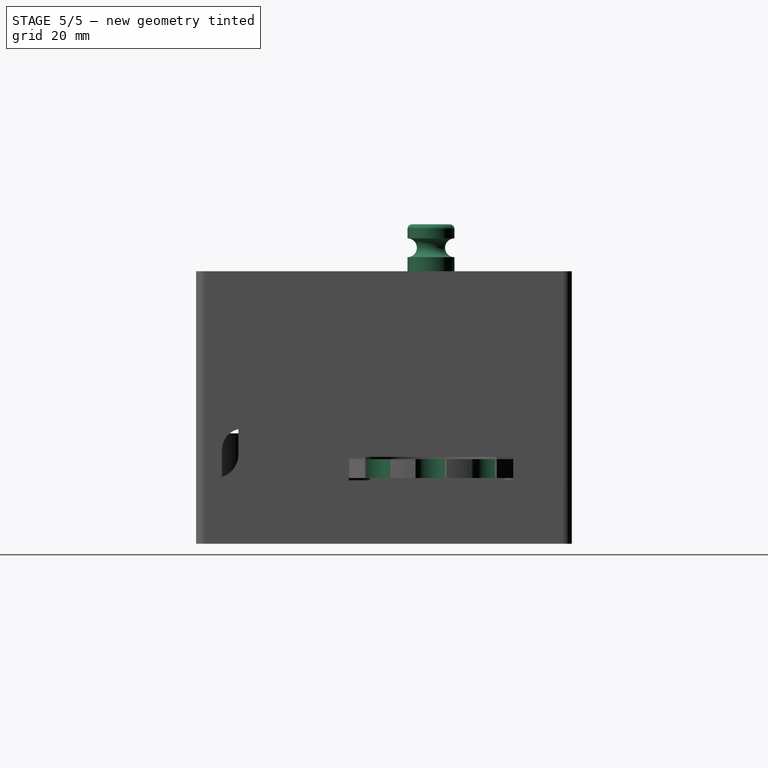
[diagram: stage 5 of 5 — right view after this stage's code; geometry added in this stage tinted green]
FEATURE [Sketcher::SketchObject] Sketch012
  ExternalGeometry = -> [Pad005]
  MapMode = 5
  Placement = pos=(0,0,22) rot=(0,0,1;0rad)
  Support = -> [Pad005]
  expr: Constraints[1] = dip.r1 + 1.5
  sketch-geometry (1):
    g0: Circle CenterX=36 CenterY=0 CenterZ=0 NormalX=0 NormalY=0 NormalZ=1 AngleXU=0 Radius=6.5
  constraints (2):
    c: Coincident(g0,g-3)
    c: Radius(g0) = 6.5
FEATURE [PartDesign::Pocket] Pocket006
  BaseFeature = -> Pad005
  Length = 2
  Length2 = 100
  Profile = -> Sketch012
  Type = 0
  expr: Length = dip.ctenka / 2
FEATURE [Sketcher::SketchObject] Sketch013
  ExternalGeometry = -> [Pocket006]
  MapMode = 5
  Placement = pos=(0,0,20) rot=(0,0,1;0rad)
  Support = -> [Pocket006]
  expr: Constraints[1] = dip.r2 + dip.zazsv
  sketch-geometry (1):
    g0: Circle CenterX=36 CenterY=0 CenterZ=0 NormalX=0 NormalY=0 NormalZ=1 AngleXU=0 Radius=2.2
  constraints (2):
    c: Coincident(g0,g-3)
    c: Radius(g0) = 2.2
FEATURE [PartDesign::Pocket] Pocket007
  BaseFeature = -> Pocket006
  Length = 2
  Length2 = 100
  Profile = -> Sketch013
  Type = 0
  expr: Length = dip.ctenka / 2
FEATURE [PartDesign::ShapeBinder] CopyPocket022
  Placement = pos=(0,0,50) rot=(0,0,1;0rad)
  TraceSupport = false
FEATURE [Sketcher::SketchObject] Sketch045
  MapMode = 5
  Placement = pos=(0,0,60) rot=(0,0,1;0rad)
  Support = -> [CopyPocket022]
  sketch-geometry (1):
    g0: Circle CenterX=0 CenterY=0 CenterZ=0 NormalX=0 NormalY=0 NormalZ=1 AngleXU=0 Radius=23.7
  constraints (2):
    c: Coincident(g0,g-1)
    c: Radius(g0) = 23.7
FEATURE [PartDesign::Pad] Pad019
  Length = 2
  Length2 = 100
  Placement = pos=(0,0,50) rot=(0,0,1;0rad)
  Profile = -> Sketch045
  Type = 0
FEATURE [Sketcher::SketchObject] Sketch046
  MapMode = 5
  Placement = pos=(0,0,62) rot=(0,0,1;0rad)
  Support = -> [Pad019]
  sketch-geometry (1):
    g0: Circle CenterX=0 CenterY=0 CenterZ=0 NormalX=0 NormalY=0 NormalZ=1 AngleXU=0 Radius=5
  constraints (2):
    c: Coincident(g0,g-1)
    c: Radius(g0) = 5
FEATURE [PartDesign::Pad] Pad020
  BaseFeature = -> Pad019
  Length = 3
  Length2 = 100
  Placement = pos=(0,0,50) rot=(0,0,1;0rad)
  Profile = -> Sketch046
  Type = 0
FEATURE [Sketcher::SketchObject] Sketch047
  MapMode = 5
  Placement = pos=(0,0,65) rot=(0,0,1;0rad)
  Support = -> [Pad020]
  sketch-geometry (1):
    g0: Circle CenterX=0 CenterY=0 CenterZ=0 NormalX=0 NormalY=0 NormalZ=1 AngleXU=0 Radius=3
  constraints (2):
    c: Coincident(g0,g-1)
    c: Radius(g0) = 3
FEATURE [PartDesign::Pad] Pad021
  BaseFeature = -> Pad020
  Length = 4
  Length2 = 100
  Placement = pos=(0,0,50) rot=(0,0,1;0rad)
  Profile = -> Sketch047
  Type = 0
FEATURE [Sketcher::SketchObject] Sketch048
  MapMode = 5
  Placement = pos=(0,0,69) rot=(0,0,1;0rad)
  Support = -> [Pad021]
  sketch-geometry (1):
    g0: Circle CenterX=0 CenterY=0 CenterZ=0 NormalX=0 NormalY=0 NormalZ=1 AngleXU=0 Radius=5
  constraints (2):
    c: Coincident(g0,g-1)
    c: Radius(g0) = 5
FEATURE [PartDesign::Pad] Pad022
  BaseFeature = -> Pad021
  Length = 3
  Length2 = 100
  Placement = pos=(0,0,50) rot=(0,0,1;0rad)
  Profile = -> Sketch048
  Type = 0
FEATURE [PartDesign::Fillet] Fillet
  Base = -> Pad022 [Edge7]
  BaseFeature = -> Pad022
  Placement = pos=(0,0,50) rot=(0,0,1;0rad)
  Radius = 1.999
FEATURE [PartDesign::Fillet] Fillet001
  Base = -> Fillet [Edge8]
  BaseFeature = -> Fillet
  Placement = pos=(0,0,50) rot=(0,0,1;0rad)
  Radius = 1.9999
FEATURE [PartDesign::Fillet] Fillet002
  Base = -> Fillet001 [Edge11]
  BaseFeature = -> Fillet001
  Placement = pos=(0,0,50) rot=(0,0,1;0rad)
  Radius = 1
FEATURE [Sketcher::SketchObject] Sketch055
  ExternalGeometry = -> [Pad023,Sketch022]
  MapMode = 5
  Placement = pos=(0,4.8e-15,22) rot=(0,0,1;0rad)
  Support = -> [Pad023]
  sketch-geometry (10):
    g0: ArcOfCircle CenterX=22.8 CenterY=17.6 CenterZ=0 NormalX=0 NormalY=0 NormalZ=1 AngleXU=0 Radius=2 StartAngle=3.36661 EndAngle=7.50997
    g1: LineSegment [constr] StartX=16.5 StartY=26 StartZ=0 EndX=22.8 EndY=17.6 EndZ=0
    g2: LineSegment StartX=12.5 StartY=26 StartZ=0 EndX=9 EndY=26 EndZ=0
    g3: LineSegment StartX=34 StartY=11 StartZ=0 EndX=34 EndY=26 EndZ=0
    g4: LineSegment StartX=34 StartY=26 StartZ=0 EndX=20.5 EndY=26 EndZ=0
    g5: LineSegment [constr] StartX=36 StartY=0 StartZ=0 EndX=16.5 EndY=26 EndZ=0
    g6: ArcOfCircle CenterX=9.15295 CenterY=14.4762 CenterZ=0 NormalX=0 NormalY=0 NormalZ=1 AngleXU=0 Radius=12 StartAngle=0.22502 EndAngle=1.28813
    g7: ArcOfCircle CenterX=25.1608 CenterY=24.1899 CenterZ=0 NormalX=0 NormalY=0 NormalZ=1 AngleXU=0 Radius=5 StartAngle=2.77115 EndAngle=4.36838
    g8: LineSegment StartX=9 StartY=26 StartZ=0 EndX=9 EndY=11 EndZ=0
    g9: LineSegment StartX=9 StartY=11 StartZ=0 EndX=34 EndY=11 EndZ=0
  constraints (25):
    c: PointOnObject(g2,g-3)
    c: PointOnObject(g4,g-3)
    c: Radius(g0) = 2
    c: Coincident(g1,g0)
    c: Symmetric(g4,g2,g1)
    c: Coincident(g2,g-3)
    c: Coincident(g3,g-3)
    c: Coincident(g3,g4)
    c: Coincident(g5,g-4)
    c: PointOnObject(g0,g5)
    c: Coincident(g5,g1)
    c: DistanceX(g2,g4) = 8
    c: DistanceX(g4,g3) = 13.5
    c: Coincident(g6,g2)
    c: Coincident(g7,g4)
    c: Radius(g6) = 12
    c: Radius(g7) = 5
    c: DistanceY(g0,g4) = 8.4
    c: Tangent(g7,g0) = 1.5708
    c: Tangent(g6,g0) = 1.5708
    c: Coincident(g3,g-5)
    c: Coincident(g2,g8)
    c: Coincident(g8,g-5)
    c: Coincident(g8,g9)
    c: Coincident(g9,g3)
FEATURE [PartDesign::Pad] Pad025
  BaseFeature = -> Pocket007
  Length = 4
  Length2 = 100
  Profile = -> Sketch050
  Reversed = true
  Type = 0
FEATURE [Sketcher::SketchObject] Sketch060
  ExternalGeometry = -> [Pad025]
  MapMode = 5
  Placement = pos=(0,0,22) rot=(0,0,1;0rad)
  Support = -> [Pad025]
  sketch-geometry (11):
    g0: LineSegment [constr] StartX=36 StartY=0 StartZ=0 EndX=54.0213 EndY=12.6187 EndZ=0
    g1: LineSegment [constr] StartX=36 StartY=0 StartZ=0 EndX=54.0213 EndY=-12.6187 EndZ=0
    g2: LineSegment [constr] StartX=36 StartY=0 StartZ=0 EndX=58 EndY=0 EndZ=0
    g3: LineSegment [constr] StartX=36 StartY=0 StartZ=0 EndX=43.5244 EndY=20.6732 EndZ=0
    g4: LineSegment [constr] StartX=36 StartY=0 StartZ=0 EndX=43.5244 EndY=-20.6732 EndZ=0
    g5: Circle [constr] CenterX=36 CenterY=0 CenterZ=0 NormalX=0 NormalY=0 NormalZ=1 AngleXU=0 Radius=22
    g6: Circle CenterX=43.5244 CenterY=20.6732 CenterZ=0 NormalX=0 NormalY=0 NormalZ=1 AngleXU=0 Radius=4
    g7: Circle CenterX=54.0213 CenterY=12.6187 CenterZ=0 NormalX=0 NormalY=0 NormalZ=1 AngleXU=0 Radius=4
    g8: Circle CenterX=58 CenterY=0 CenterZ=0 NormalX=0 NormalY=0 NormalZ=1 AngleXU=0 Radius=4
    g9: Circle CenterX=54.0213 CenterY=-12.6187 CenterZ=0 NormalX=0 NormalY=0 NormalZ=1 AngleXU=0 Radius=4
    g10: Circle CenterX=43.5244 CenterY=-20.6732 CenterZ=0 NormalX=0 NormalY=0 NormalZ=1 AngleXU=0 Radius=4
  constraints (27):
    c: Coincident(g1,g0)
    c: Coincident(g2,g0)
    c: Horizontal(g2)
    c: Coincident(g3,g0)
    c: Coincident(g4,g0)
    c: Coincident(g5,g0)
    c: PointOnObject(g0,g5)
    c: PointOnObject(g1,g5)
    c: PointOnObject(g4,g5)
    c: PointOnObject(g3,g5)
    c: Coincident(g0,g-3)
    c: PointOnObject(g2,g5)
    c: Coincident(g6,g3)
    c: Coincident(g7,g0)
    c: Coincident(g8,g2)
    c: Coincident(g9,g1)
    c: Coincident(g10,g4)
    c: Equal(g10,g9)
    c: Equal(g9,g8)
    c: Equal(g8,g7)
    c: Equal(g7,g6)
    c: Radius(g6) = 4
    c: Radius(g5) = 22
    c: Angle(g2,g0) = 0.610865
    c: Angle(g1,g2) = 0.610865
    c: Angle(g4,g1) = 0.610865
    c: Angle(g0,g3) = 0.610865
FEATURE [PartDesign::Pocket] Pocket031
  BaseFeature = -> Pad025
  Length = 5
  Length2 = 100
  Profile = -> Sketch060
  Type = 0
FEATURE [Part::Cut] Cut
  Base = -> Body003
  Tool = -> Fusion
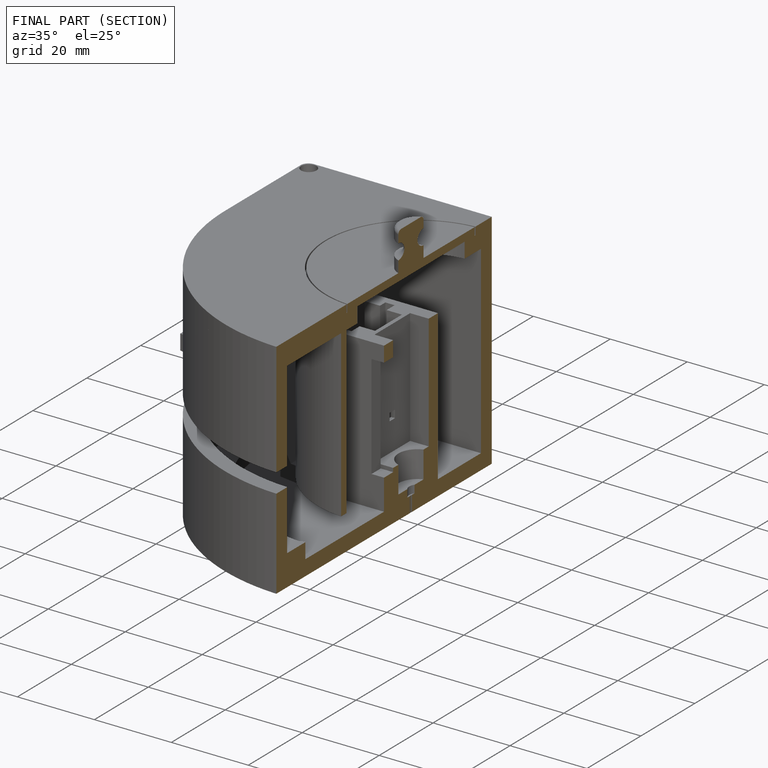
[diagram: finished part — half-section view (interior)]
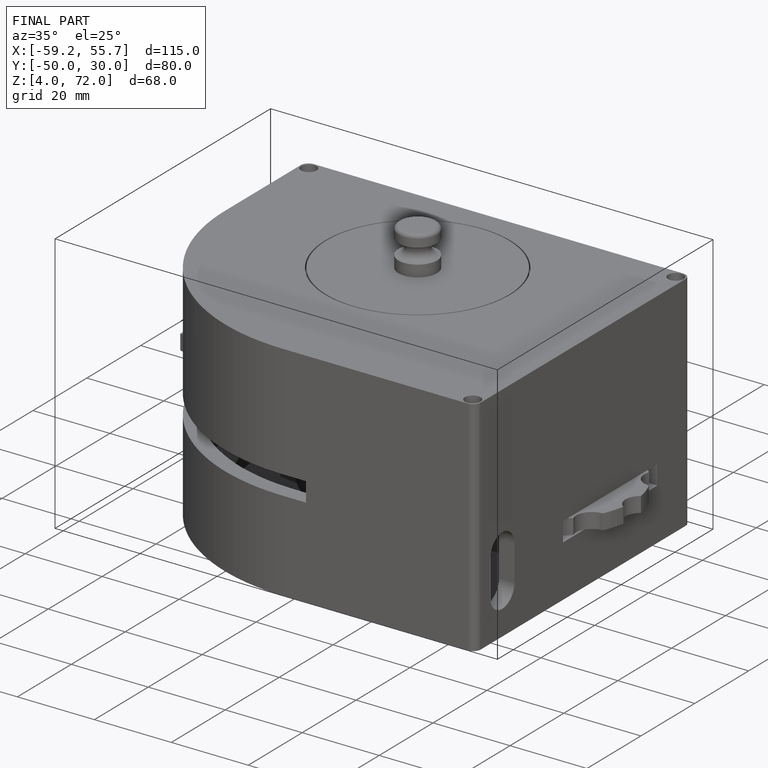
[diagram: finished part — iso view with bounding-box wireframe]
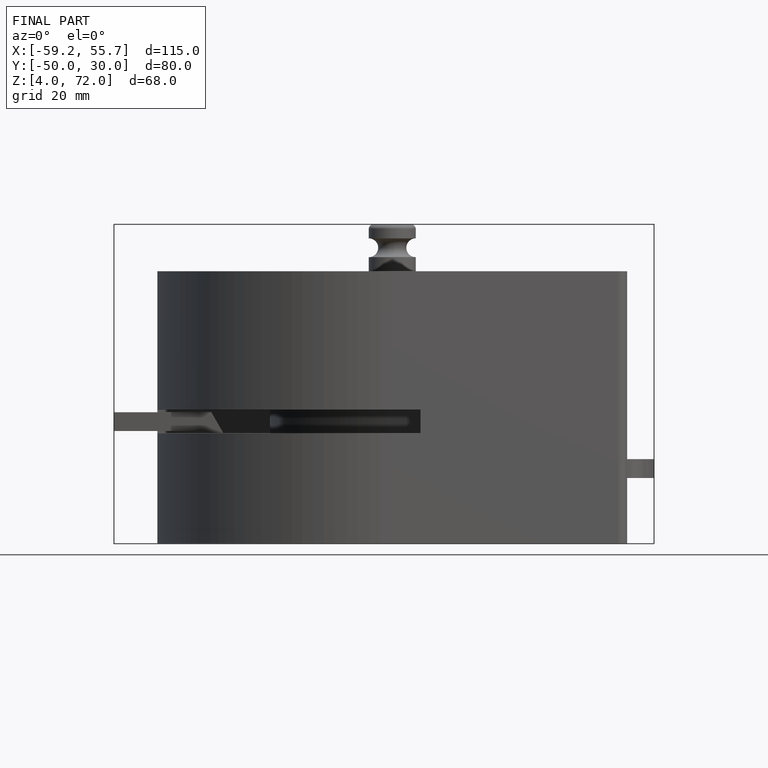
[diagram: finished part — front view with bounding-box wireframe]
